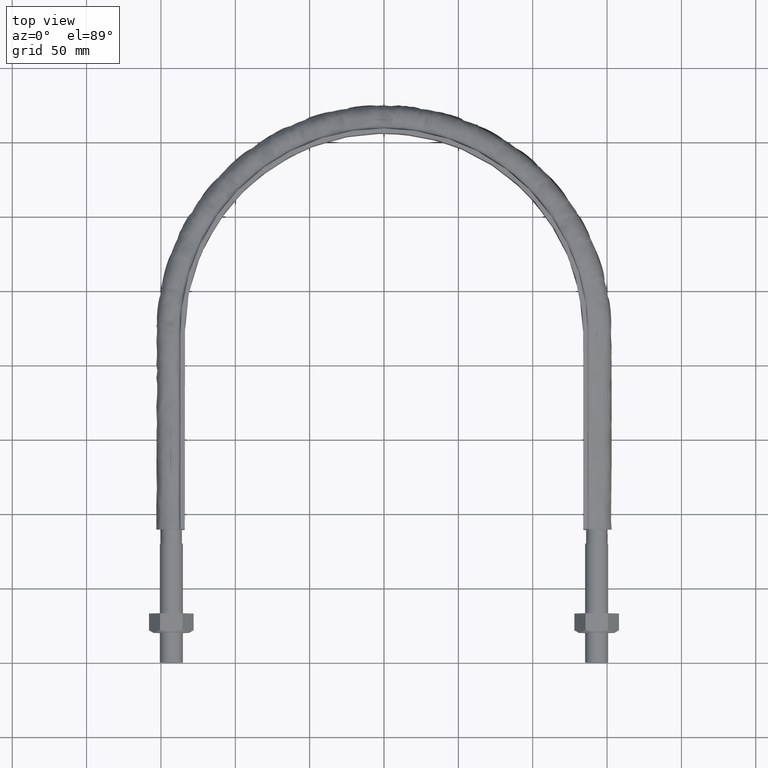
[diagram: clean part render]
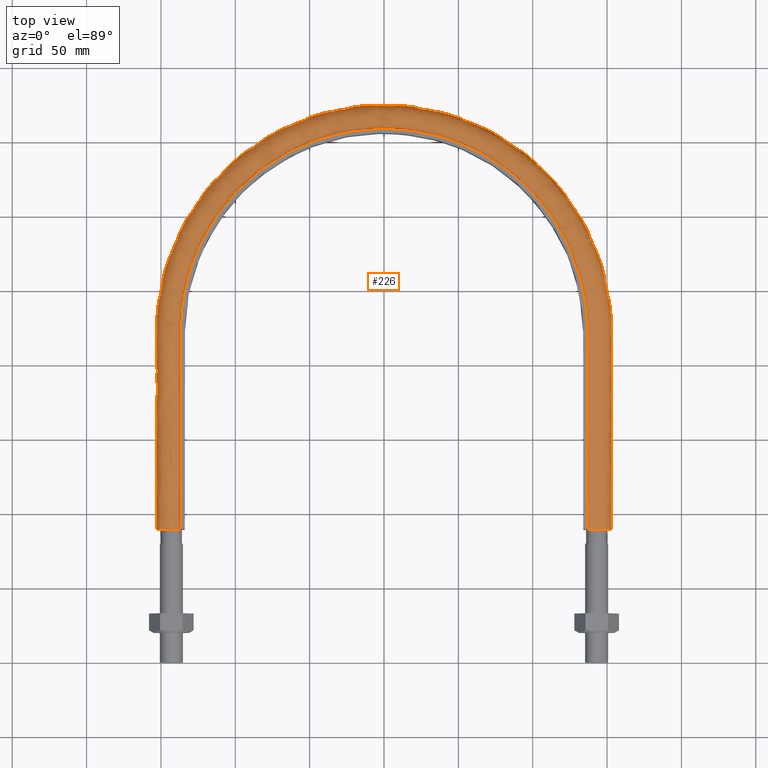
[diagram: same view with one face highlighted and labeled with its STEP entity id]
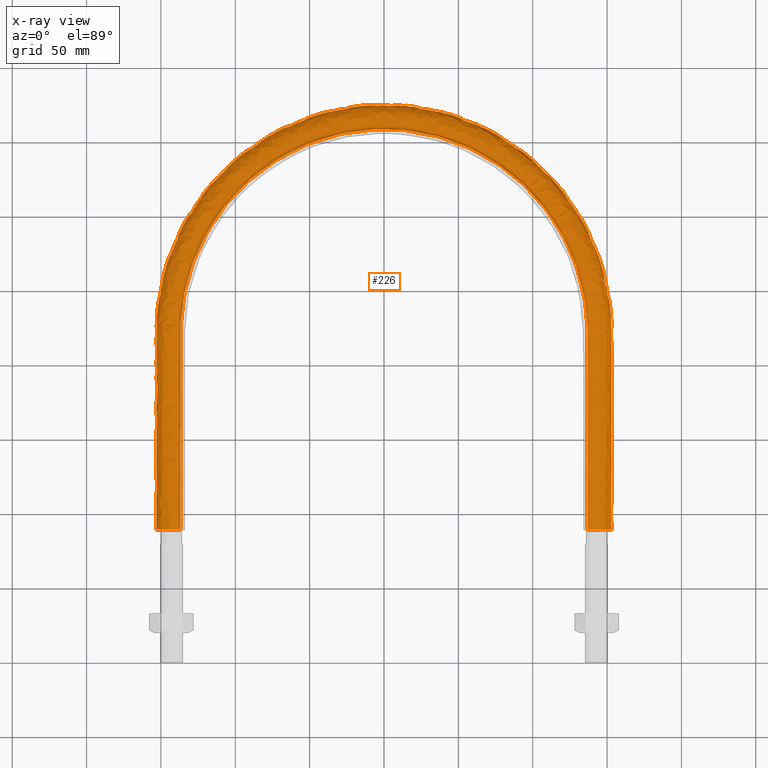
[diagram: x-ray of the same camera — body ghosted, the highlighted face saturated]
A machine part, top view. The second image highlights one B-rep face of the part: STEP entity #226.
The next image is the same camera in x-ray: the body ghosted, the highlighted face saturated — about 0% of this face is hidden behind the body in this view.
In plain terms, the highlighted face is a freeform B-spline surface patch.
Its self-contained STEP definition (entity closure, byte-faithful):
#226 = ADVANCED_FACE( '', ( #294 ), #295, .F. );
#294 = FACE_OUTER_BOUND( '', #621, .T. );
#295 = B_SPLINE_SURFACE_WITH_KNOTS( '', 3, 3, ( ( #622, #623, #624, #625, #626, #627, #628, #629, #630, #631, #632, #633, #634, #635, #636, #637, #638 ), ( #639, #640, #641, #642, #643, #644, #645, #646, #647, #648, #649, #650, #651, #652, #653, #654, #655 ), ( #656, #657, #658, #659, #660, #661, #662, #663, #664, #665, #666, #667, #668, #669, #670, #671, #672 ), ( #673, #674, #675, #676, #677, #678, #679, #680, #681, #682, #683, #684, #685, #686, #687, #688, #689 ), ( #690, #691, #692, #693, #694, #695, #696, #697, #698, #699, #700, #701, #702, #703, #704, #705, #706 ), ( #707, #708, #709, #710, #711, #712, #713, #714, #715, #716, #717, #718, #719, #720, #721, #722, #723 ), ( #724, #725, #726, #727, #728, #729, #730, #731, #732, #733, #734, #735, #736, #737, #738, #739, #740 ), ( #741, #742, #743, #744, #745, #746, #747, #748, #749, #750, #751, #752, #753, #754, #755, #756, #757 ), ( #758, #759, #760, #761, #762, #763, #764, #765, #766, #767, #768, #769, #770, #771, #772, #773, #774 ), ( #775, #776, #777, #778, #779, #780, #781, #782, #783, #784, #785, #786, #787, #788, #789, #790, #791 ), ( #792, #793, #794, #795, #796, #797, #798, #799, #800, #801, #802, #803, #804, #805, #806, #807, #808 ), ( #809, #810, #811, #812, #813, #814, #815, #816, #817, #818, #819, #820, #821, #822, #823, #824, #825 ), ( #826, #827, #828, #829, #830, #831, #832, #833, #834, #835, #836, #837, #838, #839, #840, #841, #842 ), ( #843, #844, #845, #846, #847, #848, #849, #850, #851, #852, #853, #854, #855, #856, #857, #858, #859 ), ( #860, #861, #862, #863, #864, #865, #866, #867, #868, #869, #870, #871, #872, #873, #874, #875, #876 ), ( #877, #878, #879, #880, #881, #882, #883, #884, #885, #886, #887, #888, #889, #890, #891, #892, #893 ), ( #894, #895, #896, #897, #898, #899, #900, #901, #902, #903, #904, #905, #906, #907, #908, #909, #910 ), ( #911, #912, #913, #914, #915, #916, #917, #918, #919, #920, #921, #922, #923, #924, #925, #926, #927 ), ( #928, #929, #930, #931, #932, #933, #934, #935, #936, #937, #938, #939, #940, #941, #942, #943, #944 ), ( #945, #946, #947, #948, #949, #950, #951, #952, #953, #954, #955, #956, #957, #958, #959, #960, #961 ), ( #962, #963, #964, #965, #966, #967, #968, #969, #970, #971, #972, #973, #974, #975, #976, #977, #978 ), ( #979, #980, #981, #982, #983, #984, #985, #986, #987, #988, #989, #990, #991, #992, #993, #994, #995 ), ( #996, #997, #998, #999, #1000, #1001, #1002, #1003, #1004, #1005, #1006, #1007, #1008, #1009, #1010, #1011, #1012 ), ( #1013, #1014, #1015, #1016, #1017, #1018, #1019, #1020, #1021, #1022, #1023, #1024, #1025, #1026, #1027, #1028, #1029 ), ( #1030, #1031, #1032, #1033, #1034, #1035, #1036, #1037, #1038, #1039, #1040, #1041, #1042, #1043, #1044, #1045, #1046 ), ( #1047, #1048, #1049, #1050, #1051, #1052, #1053, #1054, #1055, #1056, #1057, #1058, #1059, #1060, #1061, #1062, #1063 ), ( #1064, #1065, #1066, #1067, #1068, #1069, #1070, #1071, #1072, #1073, #1074, #1075, #1076, #1077, #1078, #1079, #1080 ), ( #1081, #1082, #1083, #1084, #1085, #1086, #1087, #1088, #1089, #1090, #1091, #1092, #1093, #1094, #1095, #1096, #1097 ), ( #1098, #1099, #1100, #1101, #1102, #1103, #1104, #1105, #1106, #1107, #1108, #1109, #1110, #1111, #1112, #1113, #1114 ), ( #1115, #1116, #1117, #1118, #1119, #1120, #1121, #1122, #1123, #1124, #1125, #1126, #1127, #1128, #1129, #1130, #1131 ), ( #1132, #1133, #1134, #1135, #1136, #1137, #1138, #1139, #1140, #1141, #1142, #1143, #1144, #1145, #1146, #1147, #1148 ), ( #1149, #1150, #1151, #1152, #1153, #1154, #1155, #1156, #1157, #1158, #1159, #1160, #1161, #1162, #1163, #1164, #1165 ) ), .UNSPECIFIED., .F., .F., .F., ( 4, 3, 1, 1, 1, 3, 3, 1, 1, 1, 1, 3, 3, 1, 1, 1, 3, 4 ), ( 4, 3, 1, 1, 1, 1, 1, 1, 1, 3, 4 ), ( 0.100000000000000, 0.150000000000000, 0.200000000000000, 0.250000000000000, 0.300000000000000, 0.350000000000000, 0.400000000000000, 0.450000000000000, 0.500000000000000, 0.550000000000000, 0.600000000000000, 0.650000000000000, 0.700000000000000, 0.750000000000000, 0.800000000000000, 0.850000000000000, 0.900000000000000, 0.950000000000000 ), ( 0.000000000000000, 1.00000000000000, 2.00000000000000, 3.00000000000000, 4.00000000000000, 5.00000000000000, 6.00000000000000, 7.00000000000000, 8.00000000000000, 9.00000000000000, 10.0000000000000 ), .UNSPECIFIED. );
#621 = EDGE_LOOP( '', ( #1716, #1717, #1718, #1719 ) );
#622 = CARTESIAN_POINT( '', ( 136.950000000000, 89.5000000000000, -20.0000000000000 ) );
#623 = CARTESIAN_POINT( '', ( 136.950000000000, 133.683333333333, -20.0000000000000 ) );
#624 = CARTESIAN_POINT( '', ( 136.950000000000, 177.866666666667, -20.0000000000000 ) );
#625 = CARTESIAN_POINT( '', ( 136.950000000000, 222.050000000000, -20.0000000000000 ) );
#626 = CARTESIAN_POINT( '', ( 136.950000000000, 239.963857435017, -20.0000000000000 ) );
#627 = CARTESIAN_POINT( '', ( 129.819269813161, 275.827750890366, -20.0000000000000 ) );
#628 = CARTESIAN_POINT( '', ( 99.3593675184605, 321.408062105588, -20.0000000000001 ) );
#629 = CARTESIAN_POINT( '', ( 53.7729022139835, 351.869642788268, -20.0000000000000 ) );
#630 = CARTESIAN_POINT( '', ( 1.22462518558505E-013, 362.565178605866, -20.0000000000000 ) );
#631 = CARTESIAN_POINT( '', ( -53.7729022139834, 351.869642788267, -20.0000000000000 ) );
#632 = CARTESIAN_POINT( '', ( -99.3593675184604, 321.408062105588, -20.0000000000000 ) );
#633 = CARTESIAN_POINT( '', ( -129.819269813161, 275.827750890366, -20.0000000000000 ) );
#634 = CARTESIAN_POINT( '', ( -136.950000000000, 239.963857435017, -20.0000000000000 ) );
#635 = CARTESIAN_POINT( '', ( -136.950000000000, 222.050000000000, -20.0000000000000 ) );
#636 = CARTESIAN_POINT( '', ( -136.950000000000, 177.866666666667, -20.0000000000000 ) );
#637 = CARTESIAN_POINT( '', ( -136.950000000000, 133.683333333333, -20.0000000000000 ) );
#638 = CARTESIAN_POINT( '', ( -136.950000000000, 89.5000000000001, -20.0000000000000 ) );
#639 = CARTESIAN_POINT( '', ( 136.950000000000, 89.5000000000000, -17.3666666666667 ) );
#640 = CARTESIAN_POINT( '', ( 136.950000000000, 133.683333333333, -17.3666666666667 ) );
#641 = CARTESIAN_POINT( '', ( 136.950000000000, 177.866666666667, -17.3666666666667 ) );
#642 = CARTESIAN_POINT( '', ( 136.950000000000, 222.050000000000, -17.3666666666667 ) );
#643 = CARTESIAN_POINT( '', ( 136.950000000000, 239.963857435017, -17.3666666666667 ) );
#644 = CARTESIAN_POINT( '', ( 129.819269813161, 275.827750890366, -17.3666666666667 ) );
#645 = CARTESIAN_POINT( '', ( 99.3593675184605, 321.408062105588, -17.3666666666667 ) );
#646 = CARTESIAN_POINT( '', ( 53.7729022139835, 351.869642788268, -17.3666666666667 ) );
#647 = CARTESIAN_POINT( '', ( 1.13788901178621E-013, 362.565178605866, -17.3666666666667 ) );
#648 = CARTESIAN_POINT( '', ( -53.7729022139834, 351.869642788267, -17.3666666666667 ) );
#649 = CARTESIAN_POINT( '', ( -99.3593675184604, 321.408062105588, -17.3666666666667 ) );
#650 = CARTESIAN_POINT( '', ( -129.819269813161, 275.827750890366, -17.3666666666667 ) );
#651 = CARTESIAN_POINT( '', ( -136.950000000000, 239.963857435017, -17.3666666666667 ) );
#652 = CARTESIAN_POINT( '', ( -136.950000000000, 222.050000000000, -17.3666666666667 ) );
#653 = CARTESIAN_POINT( '', ( -136.950000000000, 177.866666666667, -17.3666666666667 ) );
#654 = CARTESIAN_POINT( '', ( -136.950000000000, 133.683333333333, -17.3666666666667 ) );
#655 = CARTESIAN_POINT( '', ( -136.950000000000, 89.5000000000001, -17.3666666666667 ) );
#656 = CARTESIAN_POINT( '', ( 136.950000000000, 89.5000000000000, -14.7333333333333 ) );
#657 = CARTESIAN_POINT( '', ( 136.950000000000, 133.683333333333, -14.7333333333333 ) );
#658 = CARTESIAN_POINT( '', ( 136.950000000000, 177.866666666667, -14.7333333333333 ) );
#659 = CARTESIAN_POINT( '', ( 136.950000000000, 222.050000000000, -14.7333333333333 ) );
#660 = CARTESIAN_POINT( '', ( 136.950000000000, 239.963857435017, -14.7333333333333 ) );
#661 = CARTESIAN_POINT( '', ( 129.819269813161, 275.827750890366, -14.7333333333333 ) );
#662 = CARTESIAN_POINT( '', ( 99.3593675184605, 321.408062105588, -14.7333333333334 ) );
#663 = CARTESIAN_POINT( '', ( 53.7729022139835, 351.869642788268, -14.7333333333333 ) );
#664 = CARTESIAN_POINT( '', ( 1.05115283798737E-013, 362.565178605866, -14.7333333333333 ) );
#665 = CARTESIAN_POINT( '', ( -53.7729022139834, 351.869642788267, -14.7333333333333 ) );
#666 = CARTESIAN_POINT( '', ( -99.3593675184604, 321.408062105588, -14.7333333333333 ) );
#667 = CARTESIAN_POINT( '', ( -129.819269813161, 275.827750890366, -14.7333333333333 ) );
#668 = CARTESIAN_POINT( '', ( -136.950000000000, 239.963857435017, -14.7333333333333 ) );
#669 = CARTESIAN_POINT( '', ( -136.950000000000, 222.050000000000, -14.7333333333333 ) );
#670 = CARTESIAN_POINT( '', ( -136.950000000000, 177.866666666667, -14.7333333333333 ) );
#671 = CARTESIAN_POINT( '', ( -136.950000000000, 133.683333333333, -14.7333333333333 ) );
#672 = CARTESIAN_POINT( '', ( -136.950000000000, 89.5000000000001, -14.7333333333333 ) );
#673 = CARTESIAN_POINT( '', ( 136.950000000000, 89.5000000000000, -12.1000000000000 ) );
#674 = CARTESIAN_POINT( '', ( 136.950000000000, 133.683333333333, -12.1000000000000 ) );
#675 = CARTESIAN_POINT( '', ( 136.950000000000, 177.866666666667, -12.1000000000000 ) );
#676 = CARTESIAN_POINT( '', ( 136.950000000000, 222.050000000000, -12.1000000000000 ) );
#677 = CARTESIAN_POINT( '', ( 136.950000000000, 239.963857435017, -12.1000000000000 ) );
#678 = CARTESIAN_POINT( '', ( 129.819269813161, 275.827750890366, -12.1000000000000 ) );
#679 = CARTESIAN_POINT( '', ( 99.3593675184605, 321.408062105588, -12.1000000000000 ) );
#680 = CARTESIAN_POINT( '', ( 53.7729022139835, 351.869642788268, -12.1000000000000 ) );
#681 = CARTESIAN_POINT( '', ( 9.47069429428763E-014, 362.565178605866, -12.1000000000000 ) );
#682 = CARTESIAN_POINT( '', ( -53.7729022139834, 351.869642788267, -12.1000000000000 ) );
#683 = CARTESIAN_POINT( '', ( -99.3593675184604, 321.408062105588, -12.1000000000000 ) );
#684 = CARTESIAN_POINT( '', ( -129.819269813161, 275.827750890366, -12.1000000000000 ) );
#685 = CARTESIAN_POINT( '', ( -136.950000000000, 239.963857435017, -12.1000000000000 ) );
#686 = CARTESIAN_POINT( '', ( -136.950000000000, 222.050000000000, -12.1000000000000 ) );
#687 = CARTESIAN_POINT( '', ( -136.950000000000, 177.866666666667, -12.1000000000000 ) );
#688 = CARTESIAN_POINT( '', ( -136.950000000000, 133.683333333333, -12.1000000000000 ) );
#689 = CARTESIAN_POINT( '', ( -136.950000000000, 89.5000000000001, -12.1000000000000 ) );
#690 = CARTESIAN_POINT( '', ( 136.950000000000, 89.5000000000000, -11.8382358417233 ) );
#691 = CARTESIAN_POINT( '', ( 136.950000000000, 133.683333333333, -11.8382358417233 ) );
#692 = CARTESIAN_POINT( '', ( 136.950000000000, 177.866666666667, -11.8382358417233 ) );
#693 = CARTESIAN_POINT( '', ( 136.950000000000, 222.050000000000, -11.8382358417233 ) );
#694 = CARTESIAN_POINT( '', ( 136.950000000000, 239.963857435017, -11.8382358417233 ) );
#695 = CARTESIAN_POINT( '', ( 129.819269813161, 275.827750890366, -11.8382358417233 ) );
#696 = CARTESIAN_POINT( '', ( 99.3593675184605, 321.408062105588, -11.8382358417233 ) );
#697 = CARTESIAN_POINT( '', ( 53.7729022139835, 351.869642788268, -11.8382358417233 ) );
#698 = CARTESIAN_POINT( '', ( 9.29722194668995E-014, 362.565178605866, -11.8382358417233 ) );
#699 = CARTESIAN_POINT( '', ( -53.7729022139834, 351.869642788267, -11.8382358417233 ) );
#700 = CARTESIAN_POINT( '', ( -99.3593675184604, 321.408062105588, -11.8382358417233 ) );
#701 = CARTESIAN_POINT( '', ( -129.819269813161, 275.827750890366, -11.8382358417233 ) );
#702 = CARTESIAN_POINT( '', ( -136.950000000000, 239.963857435017, -11.8382358417233 ) );
#703 = CARTESIAN_POINT( '', ( -136.950000000000, 222.050000000000, -11.8382358417233 ) );
#704 = CARTESIAN_POINT( '', ( -136.950000000000, 177.866666666667, -11.8382358417233 ) );
#705 = CARTESIAN_POINT( '', ( -136.950000000000, 133.683333333333, -11.8382358417233 ) );
#706 = CARTESIAN_POINT( '', ( -136.950000000000, 89.5000000000001, -11.8382358417233 ) );
#707 = CARTESIAN_POINT( '', ( 137.054136256836, 89.5000000000000, -11.3147075251700 ) );
#708 = CARTESIAN_POINT( '', ( 137.054136256836, 133.683333333333, -11.3147075251700 ) );
#709 = CARTESIAN_POINT( '', ( 137.054136256836, 177.866666666667, -11.3147075251700 ) );
#710 = CARTESIAN_POINT( '', ( 137.054136256836, 222.050000000000, -11.3147075251700 ) );
#711 = CARTESIAN_POINT( '', ( 137.054136256836, 239.977666761268, -11.3147075251700 ) );
#712 = CARTESIAN_POINT( '', ( 129.917983890003, 275.868556141443, -11.3147075251700 ) );
#713 = CARTESIAN_POINT( '', ( 99.4349200019578, 321.483637058641, -11.3147075251700 ) );
#714 = CARTESIAN_POINT( '', ( 53.8137909234086, 351.968350445237, -11.3147075251700 ) );
#715 = CARTESIAN_POINT( '', ( 1.01658921833856E-013, 362.672029162636, -11.3147075251700 ) );
#716 = CARTESIAN_POINT( '', ( -53.8137909234086, 351.968350445236, -11.3147075251700 ) );
#717 = CARTESIAN_POINT( '', ( -99.4349200019577, 321.483637058641, -11.3147075251700 ) );
#718 = CARTESIAN_POINT( '', ( -129.917983890003, 275.868556141442, -11.3147075251700 ) );
#719 = CARTESIAN_POINT( '', ( -137.054136256836, 239.977666761268, -11.3147075251700 ) );
#720 = CARTESIAN_POINT( '', ( -137.054136256836, 222.050000000000, -11.3147075251700 ) );
#721 = CARTESIAN_POINT( '', ( -137.054136256836, 177.866666666667, -11.3147075251700 ) );
#722 = CARTESIAN_POINT( '', ( -137.054136256836, 133.683333333333, -11.3147075251700 ) );
#723 = CARTESIAN_POINT( '', ( -137.054136256836, 89.5000000000001, -11.3147075251700 ) );
#724 = CARTESIAN_POINT( '', ( 137.498968710939, 89.5000000000000, -10.6489687109389 ) );
#725 = CARTESIAN_POINT( '', ( 137.498968710939, 133.683333333333, -10.6489687109389 ) );
#726 = CARTESIAN_POINT( '', ( 137.498968710939, 177.866666666667, -10.6489687109389 ) );
#727 = CARTESIAN_POINT( '', ( 137.498968710939, 222.050000000000, -10.6489687109389 ) );
#728 = CARTESIAN_POINT( '', ( 137.498968710939, 240.036655212290, -10.6489687109389 ) );
#729 = CARTESIAN_POINT( '', ( 130.339654750761, 276.042861426923, -10.6489687109389 ) );
#730 = CARTESIAN_POINT( '', ( 99.7576529066044, 321.806465945108, -10.6489687109389 ) );
#731 = CARTESIAN_POINT( '', ( 53.9884527127922, 352.389993882618, -10.6489687109389 ) );
#732 = CARTESIAN_POINT( '', ( 1.01714816169685E-013, 363.128456125100, -10.6489687109389 ) );
#733 = CARTESIAN_POINT( '', ( -53.9884527127922, 352.389993882617, -10.6489687109389 ) );
#734 = CARTESIAN_POINT( '', ( -99.7576529066043, 321.806465945108, -10.6489687109389 ) );
#735 = CARTESIAN_POINT( '', ( -130.339654750761, 276.042861426923, -10.6489687109389 ) );
#736 = CARTESIAN_POINT( '', ( -137.498968710939, 240.036655212290, -10.6489687109389 ) );
#737 = CARTESIAN_POINT( '', ( -137.498968710939, 222.050000000000, -10.6489687109389 ) );
#738 = CARTESIAN_POINT( '', ( -137.498968710939, 177.866666666667, -10.6489687109389 ) );
#739 = CARTESIAN_POINT( '', ( -137.498968710939, 133.683333333333, -10.6489687109389 ) );
#740 = CARTESIAN_POINT( '', ( -137.498968710939, 89.5000000000001, -10.6489687109389 ) );
#741 = CARTESIAN_POINT( '', ( 138.164707525170, 89.5000000000000, -10.2041362568359 ) );
#742 = CARTESIAN_POINT( '', ( 138.164707525170, 133.683333333333, -10.2041362568359 ) );
#743 = CARTESIAN_POINT( '', ( 138.164707525170, 177.866666666667, -10.2041362568359 ) );
#744 = CARTESIAN_POINT( '', ( 138.164707525170, 222.050000000000, -10.2041362568359 ) );
#745 = CARTESIAN_POINT( '', ( 138.164707525170, 240.124937668020, -10.2041362568359 ) );
#746 = CARTESIAN_POINT( '', ( 130.970729790920, 276.303727721636, -10.2041362568359 ) );
#747 = CARTESIAN_POINT( '', ( 100.240656831500, 322.289613516949, -10.2041362568359 ) );
#748 = CARTESIAN_POINT( '', ( 54.2498525533012, 353.021027880792, -10.2041362568359 ) );
#749 = CARTESIAN_POINT( '', ( 9.65942975268569E-014, 363.811547347359, -10.2041362568359 ) );
#750 = CARTESIAN_POINT( '', ( -54.2498525533011, 353.021027880792, -10.2041362568359 ) );
#751 = CARTESIAN_POINT( '', ( -100.240656831500, 322.289613516949, -10.2041362568359 ) );
#752 = CARTESIAN_POINT( '', ( -130.970729790920, 276.303727721636, -10.2041362568359 ) );
#753 = CARTESIAN_POINT( '', ( -138.164707525170, 240.124937668020, -10.2041362568359 ) );
#754 = CARTESIAN_POINT( '', ( -138.164707525170, 222.050000000000, -10.2041362568359 ) );
#755 = CARTESIAN_POINT( '', ( -138.164707525170, 177.866666666667, -10.2041362568359 ) );
#756 = CARTESIAN_POINT( '', ( -138.164707525170, 133.683333333333, -10.2041362568359 ) );
#757 = CARTESIAN_POINT( '', ( -138.164707525170, 89.5000000000001, -10.2041362568359 ) );
#758 = CARTESIAN_POINT( '', ( 138.688235841723, 89.5000000000000, -10.1000000000000 ) );
#759 = CARTESIAN_POINT( '', ( 138.688235841723, 133.683333333333, -10.1000000000000 ) );
#760 = CARTESIAN_POINT( '', ( 138.688235841723, 177.866666666667, -10.1000000000000 ) );
#761 = CARTESIAN_POINT( '', ( 138.688235841723, 222.050000000000, -10.1000000000000 ) );
#762 = CARTESIAN_POINT( '', ( 138.688235841723, 240.194361839244, -10.1000000000000 ) );
#763 = CARTESIAN_POINT( '', ( 131.466998967857, 276.508869571859, -10.1000000000000 ) );
#764 = CARTESIAN_POINT( '', ( 100.620484815515, 322.669554463046, -10.1000000000000 ) );
#765 = CARTESIAN_POINT( '', ( 54.4554139769760, 353.517264782848, -10.1000000000000 ) );
#766 = CARTESIAN_POINT( '', ( 9.83948036750993E-014, 364.348721371161, -10.1000000000000 ) );
#767 = CARTESIAN_POINT( '', ( -54.4554139769760, 353.517264782848, -10.1000000000000 ) );
#768 = CARTESIAN_POINT( '', ( -100.620484815514, 322.669554463046, -10.1000000000000 ) );
#769 = CARTESIAN_POINT( '', ( -131.466998967857, 276.508869571859, -10.1000000000000 ) );
#770 = CARTESIAN_POINT( '', ( -138.688235841723, 240.194361839244, -10.1000000000000 ) );
#771 = CARTESIAN_POINT( '', ( -138.688235841723, 222.050000000000, -10.1000000000000 ) );
#772 = CARTESIAN_POINT( '', ( -138.688235841723, 177.866666666667, -10.1000000000000 ) );
#773 = CARTESIAN_POINT( '', ( -138.688235841723, 133.683333333333, -10.1000000000000 ) );
#774 = CARTESIAN_POINT( '', ( -138.688235841723, 89.5000000000001, -10.1000000000000 ) );
#775 = CARTESIAN_POINT( '', ( 138.950000000000, 89.5000000000000, -10.1000000000000 ) );
#776 = CARTESIAN_POINT( '', ( 138.950000000000, 133.683333333333, -10.1000000000000 ) );
#777 = CARTESIAN_POINT( '', ( 138.950000000000, 177.866666666667, -10.1000000000000 ) );
#778 = CARTESIAN_POINT( '', ( 138.950000000000, 222.050000000000, -10.1000000000000 ) );
#779 = CARTESIAN_POINT( '', ( 138.950000000000, 240.229073924856, -10.1000000000000 ) );
#780 = CARTESIAN_POINT( '', ( 131.715133556325, 276.611440496970, -10.1000000000000 ) );
#781 = CARTESIAN_POINT( '', ( 100.810398807522, 322.859524936095, -10.1000000000000 ) );
#782 = CARTESIAN_POINT( '', ( 54.5581946888135, 353.765383233876, -10.1000000000000 ) );
#783 = CARTESIAN_POINT( '', ( 9.32235245833017E-014, 364.617308383062, -10.1000000000000 ) );
#784 = CARTESIAN_POINT( '', ( -54.5581946888134, 353.765383233876, -10.1000000000000 ) );
#785 = CARTESIAN_POINT( '', ( -100.810398807522, 322.859524936095, -10.1000000000000 ) );
#786 = CARTESIAN_POINT( '', ( -131.715133556325, 276.611440496970, -10.1000000000000 ) );
#787 = CARTESIAN_POINT( '', ( -138.950000000000, 240.229073924856, -10.1000000000000 ) );
#788 = CARTESIAN_POINT( '', ( -138.950000000000, 222.050000000000, -10.1000000000000 ) );
#789 = CARTESIAN_POINT( '', ( -138.950000000000, 177.866666666667, -10.1000000000000 ) );
#790 = CARTESIAN_POINT( '', ( -138.950000000000, 133.683333333333, -10.1000000000000 ) );
#791 = CARTESIAN_POINT( '', ( -138.950000000000, 89.5000000000001, -10.1000000000000 ) );
#792 = CARTESIAN_POINT( '', ( 140.300000000000, 89.5000000000000, -10.1000000000000 ) );
#793 = CARTESIAN_POINT( '', ( 140.300000000000, 133.683333333333, -10.1000000000000 ) );
#794 = CARTESIAN_POINT( '', ( 140.300000000000, 177.866666666667, -10.1000000000000 ) );
#795 = CARTESIAN_POINT( '', ( 140.300000000000, 222.050000000000, -10.1000000000000 ) );
#796 = CARTESIAN_POINT( '', ( 140.300000000000, 240.408095055498, -10.1000000000000 ) );
#797 = CARTESIAN_POINT( '', ( 132.994841582961, 277.140430981428, -10.1000000000000 ) );
#798 = CARTESIAN_POINT( '', ( 101.789844927638, 323.839262346687, -10.1000000000000 ) );
#799 = CARTESIAN_POINT( '', ( 55.0882671093237, 355.045008034661, -10.1000000000000 ) );
#800 = CARTESIAN_POINT( '', ( 1.21148731152502E-013, 366.002495982669, -10.1000000000000 ) );
#801 = CARTESIAN_POINT( '', ( -55.0882671093237, 355.045008034661, -10.1000000000000 ) );
#802 = CARTESIAN_POINT( '', ( -101.789844927638, 323.839262346687, -10.1000000000000 ) );
#803 = CARTESIAN_POINT( '', ( -132.994841582961, 277.140430981428, -10.1000000000000 ) );
#804 = CARTESIAN_POINT( '', ( -140.300000000000, 240.408095055498, -10.1000000000000 ) );
#805 = CARTESIAN_POINT( '', ( -140.300000000000, 222.050000000000, -10.1000000000000 ) );
#806 = CARTESIAN_POINT( '', ( -140.300000000000, 177.866666666667, -10.1000000000000 ) );
#807 = CARTESIAN_POINT( '', ( -140.300000000000, 133.683333333333, -10.1000000000000 ) );
#808 = CARTESIAN_POINT( '', ( -140.300000000000, 89.5000000000001, -10.1000000000000 ) );
#809 = CARTESIAN_POINT( '', ( 141.650000000000, 89.5000000000000, -10.1000000000000 ) );
#810 = CARTESIAN_POINT( '', ( 141.650000000000, 133.683333333333, -10.1000000000000 ) );
#811 = CARTESIAN_POINT( '', ( 141.650000000000, 177.866666666667, -10.1000000000000 ) );
#812 = CARTESIAN_POINT( '', ( 141.650000000000, 222.050000000000, -10.1000000000000 ) );
#813 = CARTESIAN_POINT( '', ( 141.650000000000, 240.587116186140, -10.1000000000000 ) );
#814 = CARTESIAN_POINT( '', ( 134.274549609597, 277.669421465886, -10.1000000000000 ) );
#815 = CARTESIAN_POINT( '', ( 102.769291047754, 324.818999757278, -10.1000000000000 ) );
#816 = CARTESIAN_POINT( '', ( 55.6183395298340, 356.324632835447, -10.1000000000000 ) );
#817 = CARTESIAN_POINT( '', ( 1.17848915154120E-013, 367.387683582277, -10.1000000000000 ) );
#818 = CARTESIAN_POINT( '', ( -55.6183395298339, 356.324632835447, -10.1000000000000 ) );
#819 = CARTESIAN_POINT( '', ( -102.769291047754, 324.818999757278, -10.1000000000000 ) );
#820 = CARTESIAN_POINT( '', ( -134.274549609597, 277.669421465886, -10.1000000000000 ) );
#821 = CARTESIAN_POINT( '', ( -141.650000000000, 240.587116186140, -10.1000000000000 ) );
#822 = CARTESIAN_POINT( '', ( -141.650000000000, 222.050000000000, -10.1000000000000 ) );
#823 = CARTESIAN_POINT( '', ( -141.650000000000, 177.866666666667, -10.1000000000000 ) );
#824 = CARTESIAN_POINT( '', ( -141.650000000000, 133.683333333333, -10.1000000000000 ) );
#825 = CARTESIAN_POINT( '', ( -141.650000000000, 89.5000000000001, -10.1000000000000 ) );
#826 = CARTESIAN_POINT( '', ( 143.000000000000, 89.5000000000000, -10.1000000000000 ) );
#827 = CARTESIAN_POINT( '', ( 143.000000000000, 133.683333333333, -10.1000000000000 ) );
#828 = CARTESIAN_POINT( '', ( 143.000000000000, 177.866666666667, -10.1000000000000 ) );
#829 = CARTESIAN_POINT( '', ( 143.000000000000, 222.050000000000, -10.1000000000000 ) );
#830 = CARTESIAN_POINT( '', ( 143.000000000000, 240.766137316781, -10.1000000000000 ) );
#831 = CARTESIAN_POINT( '', ( 135.554257636233, 278.198411950344, -10.1000000000000 ) );
#832 = CARTESIAN_POINT( '', ( 103.748737167870, 325.798737167870, -10.1000000000000 ) );
#833 = CARTESIAN_POINT( '', ( 56.1484119503442, 357.604257636233, -10.1000000000000 ) );
#834 = CARTESIAN_POINT( '', ( 1.14549099155738E-013, 368.772871181884, -10.1000000000000 ) );
#835 = CARTESIAN_POINT( '', ( -56.1484119503442, 357.604257636232, -10.1000000000000 ) );
#836 = CARTESIAN_POINT( '', ( -103.748737167870, 325.798737167870, -10.1000000000000 ) );
#837 = CARTESIAN_POINT( '', ( -135.554257636232, 278.198411950344, -10.1000000000000 ) );
#838 = CARTESIAN_POINT( '', ( -143.000000000000, 240.766137316781, -10.1000000000000 ) );
#839 = CARTESIAN_POINT( '', ( -143.000000000000, 222.050000000000, -10.1000000000000 ) );
#840 = CARTESIAN_POINT( '', ( -143.000000000000, 177.866666666667, -10.1000000000000 ) );
#841 = CARTESIAN_POINT( '', ( -143.000000000000, 133.683333333333, -10.1000000000000 ) );
#842 = CARTESIAN_POINT( '', ( -143.000000000000, 89.5000000000001, -10.1000000000000 ) );
#843 = CARTESIAN_POINT( '', ( 145.113419413283, 89.5000000000000, -10.1000000000000 ) );
#844 = CARTESIAN_POINT( '', ( 145.113419413283, 133.683333333333, -10.1000000000000 ) );
#845 = CARTESIAN_POINT( '', ( 145.113419413283, 177.866666666667, -10.1000000000000 ) );
#846 = CARTESIAN_POINT( '', ( 145.113419413283, 222.050000000000, -10.1000000000000 ) );
#847 = CARTESIAN_POINT( '', ( 145.113419413283, 241.046394155956, -10.1000000000000 ) );
#848 = CARTESIAN_POINT( '', ( 137.557635256104, 279.026544364637, -10.1000000000000 ) );
#849 = CARTESIAN_POINT( '', ( 105.282056015662, 327.332512029696, -10.1000000000000 ) );
#850 = CARTESIAN_POINT( '', ( 56.9782381310496, 359.607504966380, -10.1000000000000 ) );
#851 = CARTESIAN_POINT( '', ( 9.22632505238703E-014, 370.941376636735, -10.1000000000000 ) );
#852 = CARTESIAN_POINT( '', ( -56.9782381310496, 359.607504966380, -10.1000000000000 ) );
#853 = CARTESIAN_POINT( '', ( -105.282056015662, 327.332512029696, -10.1000000000000 ) );
#854 = CARTESIAN_POINT( '', ( -137.557635256104, 279.026544364637, -10.1000000000000 ) );
#855 = CARTESIAN_POINT( '', ( -145.113419413283, 241.046394155956, -10.1000000000000 ) );
#856 = CARTESIAN_POINT( '', ( -145.113419413283, 222.050000000000, -10.1000000000000 ) );
#857 = CARTESIAN_POINT( '', ( -145.113419413283, 177.866666666667, -10.1000000000000 ) );
#858 = CARTESIAN_POINT( '', ( -145.113419413283, 133.683333333333, -10.1000000000000 ) );
#859 = CARTESIAN_POINT( '', ( -145.113419413283, 89.5000000000001, -10.1000000000000 ) );
#860 = CARTESIAN_POINT( '', ( 149.340258239849, 89.5000000000000, -8.72661681244670 ) );
#861 = CARTESIAN_POINT( '', ( 149.340258239849, 133.683333333333, -8.72661681244670 ) );
#862 = CARTESIAN_POINT( '', ( 149.340258239849, 177.866666666667, -8.72661681244670 ) );
#863 = CARTESIAN_POINT( '', ( 149.340258239849, 222.050000000000, -8.72661681244670 ) );
#864 = CARTESIAN_POINT( '', ( 149.340258239849, 241.606907834306, -8.72661681244670 ) );
#865 = CARTESIAN_POINT( '', ( 141.564390495846, 280.682809193223, -8.72661681244670 ) );
#866 = CARTESIAN_POINT( '', ( 108.348693711245, 330.400061753347, -8.72661681244671 ) );
#867 = CARTESIAN_POINT( '', ( 58.6378904924604, 363.613999626674, -8.72661681244669 ) );
#868 = CARTESIAN_POINT( '', ( 9.10596401595553E-014, 375.278387546437, -8.72661681244670 ) );
#869 = CARTESIAN_POINT( '', ( -58.6378904924603, 363.613999626674, -8.72661681244671 ) );
#870 = CARTESIAN_POINT( '', ( -108.348693711245, 330.400061753347, -8.72661681244670 ) );
#871 = CARTESIAN_POINT( '', ( -141.564390495846, 280.682809193223, -8.72661681244670 ) );
#872 = CARTESIAN_POINT( '', ( -149.340258239849, 241.606907834306, -8.72661681244670 ) );
#873 = CARTESIAN_POINT( '', ( -149.340258239849, 222.050000000000, -8.72661681244670 ) );
#874 = CARTESIAN_POINT( '', ( -149.340258239849, 177.866666666667, -8.72661681244670 ) );
#875 = CARTESIAN_POINT( '', ( -149.340258239849, 133.683333333333, -8.72661681244670 ) );
#876 = CARTESIAN_POINT( '', ( -149.340258239849, 89.5000000000001, -8.72661681244670 ) );
#877 = CARTESIAN_POINT( '', ( 153.258753329527, 89.5000000000000, -3.33327101555837 ) );
#878 = CARTESIAN_POINT( '', ( 153.258753329527, 133.683333333333, -3.33327101555837 ) );
#879 = CARTESIAN_POINT( '', ( 153.258753329527, 177.866666666667, -3.33327101555837 ) );
#880 = CARTESIAN_POINT( '', ( 153.258753329527, 222.050000000000, -3.33327101555837 ) );
#881 = CARTESIAN_POINT( '', ( 153.258753329528, 242.126532590875, -3.33327101555837 ) );
#882 = CARTESIAN_POINT( '', ( 145.278856879990, 282.218251130879, -3.33327101555837 ) );
#883 = CARTESIAN_POINT( '', ( 111.191623201823, 333.243836740442, -3.33327101555838 ) );
#884 = CARTESIAN_POINT( '', ( 60.1764728457517, 367.328224440384, -3.33327101555837 ) );
#885 = CARTESIAN_POINT( '', ( 8.80825621399182E-014, 379.299017774099, -3.33327101555837 ) );
#886 = CARTESIAN_POINT( '', ( -60.1764728457517, 367.328224440384, -3.33327101555838 ) );
#887 = CARTESIAN_POINT( '', ( -111.191623201822, 333.243836740442, -3.33327101555837 ) );
#888 = CARTESIAN_POINT( '', ( -145.278856879990, 282.218251130878, -3.33327101555837 ) );
#889 = CARTESIAN_POINT( '', ( -153.258753329527, 242.126532590875, -3.33327101555837 ) );
#890 = CARTESIAN_POINT( '', ( -153.258753329527, 222.050000000000, -3.33327101555837 ) );
#891 = CARTESIAN_POINT( '', ( -153.258753329527, 177.866666666667, -3.33327101555837 ) );
#892 = CARTESIAN_POINT( '', ( -153.258753329527, 133.683333333333, -3.33327101555837 ) );
#893 = CARTESIAN_POINT( '', ( -153.258753329527, 89.5000000000001, -3.33327101555837 ) );
#894 = CARTESIAN_POINT( '', ( 153.258753329527, 89.5000000000000, 3.33327101555837 ) );
#895 = CARTESIAN_POINT( '', ( 153.258753329527, 133.683333333333, 3.33327101555837 ) );
#896 = CARTESIAN_POINT( '', ( 153.258753329527, 177.866666666667, 3.33327101555837 ) );
#897 = CARTESIAN_POINT( '', ( 153.258753329527, 222.050000000000, 3.33327101555837 ) );
#898 = CARTESIAN_POINT( '', ( 153.258753329528, 242.126532590875, 3.33327101555837 ) );
#899 = CARTESIAN_POINT( '', ( 145.278856879990, 282.218251130879, 3.33327101555837 ) );
#900 = CARTESIAN_POINT( '', ( 111.191623201823, 333.243836740442, 3.33327101555838 ) );
#901 = CARTESIAN_POINT( '', ( 60.1764728457517, 367.328224440384, 3.33327101555837 ) );
#902 = CARTESIAN_POINT( '', ( 8.80825621399182E-014, 379.299017774099, 3.33327101555837 ) );
#903 = CARTESIAN_POINT( '', ( -60.1764728457517, 367.328224440384, 3.33327101555838 ) );
#904 = CARTESIAN_POINT( '', ( -111.191623201822, 333.243836740442, 3.33327101555837 ) );
#905 = CARTESIAN_POINT( '', ( -145.278856879990, 282.218251130878, 3.33327101555837 ) );
#906 = CARTESIAN_POINT( '', ( -153.258753329527, 242.126532590875, 3.33327101555837 ) );
#907 = CARTESIAN_POINT( '', ( -153.258753329527, 222.050000000000, 3.33327101555837 ) );
#908 = CARTESIAN_POINT( '', ( -153.258753329527, 177.866666666667, 3.33327101555837 ) );
#909 = CARTESIAN_POINT( '', ( -153.258753329527, 133.683333333333, 3.33327101555837 ) );
#910 = CARTESIAN_POINT( '', ( -153.258753329527, 89.5000000000001, 3.33327101555837 ) );
#911 = CARTESIAN_POINT( '', ( 149.340258239849, 89.5000000000000, 8.72661681244669 ) );
#912 = CARTESIAN_POINT( '', ( 149.340258239849, 133.683333333333, 8.72661681244669 ) );
#913 = CARTESIAN_POINT( '', ( 149.340258239849, 177.866666666667, 8.72661681244669 ) );
#914 = CARTESIAN_POINT( '', ( 149.340258239849, 222.050000000000, 8.72661681244669 ) );
#915 = CARTESIAN_POINT( '', ( 149.340258239849, 241.606907834306, 8.72661681244669 ) );
#916 = CARTESIAN_POINT( '', ( 141.564390495846, 280.682809193223, 8.72661681244670 ) );
#917 = CARTESIAN_POINT( '', ( 108.348693711245, 330.400061753347, 8.72661681244671 ) );
#918 = CARTESIAN_POINT( '', ( 58.6378904924604, 363.613999626674, 8.72661681244669 ) );
#919 = CARTESIAN_POINT( '', ( 9.10596401595553E-014, 375.278387546437, 8.72661681244669 ) );
#920 = CARTESIAN_POINT( '', ( -58.6378904924603, 363.613999626674, 8.72661681244670 ) );
#921 = CARTESIAN_POINT( '', ( -108.348693711245, 330.400061753347, 8.72661681244669 ) );
#922 = CARTESIAN_POINT( '', ( -141.564390495846, 280.682809193223, 8.72661681244669 ) );
#923 = CARTESIAN_POINT( '', ( -149.340258239849, 241.606907834306, 8.72661681244669 ) );
#924 = CARTESIAN_POINT( '', ( -149.340258239849, 222.050000000000, 8.72661681244669 ) );
#925 = CARTESIAN_POINT( '', ( -149.340258239849, 177.866666666667, 8.72661681244669 ) );
#926 = CARTESIAN_POINT( '', ( -149.340258239849, 133.683333333333, 8.72661681244669 ) );
#927 = CARTESIAN_POINT( '', ( -149.340258239849, 89.5000000000001, 8.72661681244669 ) );
#928 = CARTESIAN_POINT( '', ( 145.113419413283, 89.5000000000000, 10.1000000000000 ) );
#929 = CARTESIAN_POINT( '', ( 145.113419413283, 133.683333333333, 10.1000000000000 ) );
#930 = CARTESIAN_POINT( '', ( 145.113419413283, 177.866666666667, 10.1000000000000 ) );
#931 = CARTESIAN_POINT( '', ( 145.113419413283, 222.050000000000, 10.1000000000000 ) );
#932 = CARTESIAN_POINT( '', ( 145.113419413283, 241.046394155956, 10.1000000000000 ) );
#933 = CARTESIAN_POINT( '', ( 137.557635256104, 279.026544364637, 10.1000000000000 ) );
#934 = CARTESIAN_POINT( '', ( 105.282056015662, 327.332512029696, 10.1000000000000 ) );
#935 = CARTESIAN_POINT( '', ( 56.9782381310496, 359.607504966380, 10.1000000000000 ) );
#936 = CARTESIAN_POINT( '', ( 9.22632505238703E-014, 370.941376636735, 10.1000000000000 ) );
#937 = CARTESIAN_POINT( '', ( -56.9782381310496, 359.607504966380, 10.1000000000000 ) );
#938 = CARTESIAN_POINT( '', ( -105.282056015662, 327.332512029696, 10.1000000000000 ) );
#939 = CARTESIAN_POINT( '', ( -137.557635256104, 279.026544364637, 10.1000000000000 ) );
#940 = CARTESIAN_POINT( '', ( -145.113419413283, 241.046394155956, 10.1000000000000 ) );
#941 = CARTESIAN_POINT( '', ( -145.113419413283, 222.050000000000, 10.1000000000000 ) );
#942 = CARTESIAN_POINT( '', ( -145.113419413283, 177.866666666667, 10.1000000000000 ) );
#943 = CARTESIAN_POINT( '', ( -145.113419413283, 133.683333333333, 10.1000000000000 ) );
#944 = CARTESIAN_POINT( '', ( -145.113419413283, 89.5000000000001, 10.1000000000000 ) );
#945 = CARTESIAN_POINT( '', ( 143.000000000000, 89.5000000000000, 10.1000000000000 ) );
#946 = CARTESIAN_POINT( '', ( 143.000000000000, 133.683333333333, 10.1000000000000 ) );
#947 = CARTESIAN_POINT( '', ( 143.000000000000, 177.866666666667, 10.1000000000000 ) );
#948 = CARTESIAN_POINT( '', ( 143.000000000000, 222.050000000000, 10.1000000000000 ) );
#949 = CARTESIAN_POINT( '', ( 143.000000000000, 240.766137316781, 10.1000000000000 ) );
#950 = CARTESIAN_POINT( '', ( 135.554257636233, 278.198411950344, 10.1000000000000 ) );
#951 = CARTESIAN_POINT( '', ( 103.748737167870, 325.798737167870, 10.1000000000000 ) );
#952 = CARTESIAN_POINT( '', ( 56.1484119503442, 357.604257636233, 10.1000000000000 ) );
#953 = CARTESIAN_POINT( '', ( 9.19976939680394E-014, 368.772871181884, 10.1000000000000 ) );
#954 = CARTESIAN_POINT( '', ( -56.1484119503442, 357.604257636232, 10.1000000000000 ) );
#955 = CARTESIAN_POINT( '', ( -103.748737167870, 325.798737167870, 10.1000000000000 ) );
#956 = CARTESIAN_POINT( '', ( -135.554257636232, 278.198411950344, 10.1000000000000 ) );
#957 = CARTESIAN_POINT( '', ( -143.000000000000, 240.766137316781, 10.1000000000000 ) );
#958 = CARTESIAN_POINT( '', ( -143.000000000000, 222.050000000000, 10.1000000000000 ) );
#959 = CARTESIAN_POINT( '', ( -143.000000000000, 177.866666666667, 10.1000000000000 ) );
#960 = CARTESIAN_POINT( '', ( -143.000000000000, 133.683333333333, 10.1000000000000 ) );
#961 = CARTESIAN_POINT( '', ( -143.000000000000, 89.5000000000001, 10.1000000000000 ) );
#962 = CARTESIAN_POINT( '', ( 141.650000000000, 89.5000000000000, 10.1000000000000 ) );
#963 = CARTESIAN_POINT( '', ( 141.650000000000, 133.683333333333, 10.1000000000000 ) );
#964 = CARTESIAN_POINT( '', ( 141.650000000000, 177.866666666667, 10.1000000000000 ) );
#965 = CARTESIAN_POINT( '', ( 141.650000000000, 222.050000000000, 10.1000000000000 ) );
#966 = CARTESIAN_POINT( '', ( 141.650000000000, 240.587116186140, 10.1000000000000 ) );
#967 = CARTESIAN_POINT( '', ( 134.274549609597, 277.669421465886, 10.1000000000000 ) );
#968 = CARTESIAN_POINT( '', ( 102.769291047754, 324.818999757278, 10.1000000000000 ) );
#969 = CARTESIAN_POINT( '', ( 55.6183395298340, 356.324632835447, 10.1000000000000 ) );
#970 = CARTESIAN_POINT( '', ( 1.05705850822282E-013, 367.387683582277, 10.1000000000000 ) );
#971 = CARTESIAN_POINT( '', ( -55.6183395298339, 356.324632835447, 10.1000000000000 ) );
#972 = CARTESIAN_POINT( '', ( -102.769291047754, 324.818999757278, 10.1000000000000 ) );
#973 = CARTESIAN_POINT( '', ( -134.274549609597, 277.669421465886, 10.1000000000000 ) );
#974 = CARTESIAN_POINT( '', ( -141.650000000000, 240.587116186140, 10.1000000000000 ) );
#975 = CARTESIAN_POINT( '', ( -141.650000000000, 222.050000000000, 10.1000000000000 ) );
#976 = CARTESIAN_POINT( '', ( -141.650000000000, 177.866666666667, 10.1000000000000 ) );
#977 = CARTESIAN_POINT( '', ( -141.650000000000, 133.683333333333, 10.1000000000000 ) );
#978 = CARTESIAN_POINT( '', ( -141.650000000000, 89.5000000000001, 10.1000000000000 ) );
#979 = CARTESIAN_POINT( '', ( 140.300000000000, 89.5000000000000, 10.1000000000000 ) );
#980 = CARTESIAN_POINT( '', ( 140.300000000000, 133.683333333333, 10.1000000000000 ) );
#981 = CARTESIAN_POINT( '', ( 140.300000000000, 177.866666666667, 10.1000000000000 ) );
#982 = CARTESIAN_POINT( '', ( 140.300000000000, 222.050000000000, 10.1000000000000 ) );
#983 = CARTESIAN_POINT( '', ( 140.300000000000, 240.408095055498, 10.1000000000000 ) );
#984 = CARTESIAN_POINT( '', ( 132.994841582961, 277.140430981428, 10.1000000000000 ) );
#985 = CARTESIAN_POINT( '', ( 101.789844927638, 323.839262346687, 10.1000000000000 ) );
#986 = CARTESIAN_POINT( '', ( 55.0882671093237, 355.045008034661, 10.1000000000000 ) );
#987 = CARTESIAN_POINT( '', ( 1.02066772916757E-013, 366.002495982669, 10.1000000000000 ) );
#988 = CARTESIAN_POINT( '', ( -55.0882671093237, 355.045008034661, 10.1000000000000 ) );
#989 = CARTESIAN_POINT( '', ( -101.789844927638, 323.839262346687, 10.1000000000000 ) );
#990 = CARTESIAN_POINT( '', ( -132.994841582961, 277.140430981428, 10.1000000000000 ) );
#991 = CARTESIAN_POINT( '', ( -140.300000000000, 240.408095055498, 10.1000000000000 ) );
#992 = CARTESIAN_POINT( '', ( -140.300000000000, 222.050000000000, 10.1000000000000 ) );
#993 = CARTESIAN_POINT( '', ( -140.300000000000, 177.866666666667, 10.1000000000000 ) );
#994 = CARTESIAN_POINT( '', ( -140.300000000000, 133.683333333333, 10.1000000000000 ) );
#995 = CARTESIAN_POINT( '', ( -140.300000000000, 89.5000000000001, 10.1000000000000 ) );
#996 = CARTESIAN_POINT( '', ( 138.950000000000, 89.5000000000000, 10.1000000000000 ) );
#997 = CARTESIAN_POINT( '', ( 138.950000000000, 133.683333333333, 10.1000000000000 ) );
#998 = CARTESIAN_POINT( '', ( 138.950000000000, 177.866666666667, 10.1000000000000 ) );
#999 = CARTESIAN_POINT( '', ( 138.950000000000, 222.050000000000, 10.1000000000000 ) );
#1000 = CARTESIAN_POINT( '', ( 138.950000000000, 240.229073924856, 10.1000000000000 ) );
#1001 = CARTESIAN_POINT( '', ( 131.715133556325, 276.611440496970, 10.1000000000000 ) );
#1002 = CARTESIAN_POINT( '', ( 100.810398807522, 322.859524936095, 10.1000000000000 ) );
#1003 = CARTESIAN_POINT( '', ( 54.5581946888135, 353.765383233876, 10.1000000000000 ) );
#1004 = CARTESIAN_POINT( '', ( 1.01897141963186E-013, 364.617308383062, 10.1000000000000 ) );
#1005 = CARTESIAN_POINT( '', ( -54.5581946888134, 353.765383233876, 10.1000000000000 ) );
#1006 = CARTESIAN_POINT( '', ( -100.810398807522, 322.859524936095, 10.1000000000000 ) );
#1007 = CARTESIAN_POINT( '', ( -131.715133556325, 276.611440496970, 10.1000000000000 ) );
#1008 = CARTESIAN_POINT( '', ( -138.950000000000, 240.229073924856, 10.1000000000000 ) );
#1009 = CARTESIAN_POINT( '', ( -138.950000000000, 222.050000000000, 10.1000000000000 ) );
#1010 = CARTESIAN_POINT( '', ( -138.950000000000, 177.866666666667, 10.1000000000000 ) );
#1011 = CARTESIAN_POINT( '', ( -138.950000000000, 133.683333333333, 10.1000000000000 ) );
#1012 = CARTESIAN_POINT( '', ( -138.950000000000, 89.5000000000001, 10.1000000000000 ) );
#1013 = CARTESIAN_POINT( '', ( 138.688235841723, 89.5000000000000, 10.1000000000000 ) );
#1014 = CARTESIAN_POINT( '', ( 138.688235841723, 133.683333333333, 10.1000000000000 ) );
#1015 = CARTESIAN_POINT( '', ( 138.688235841723, 177.866666666667, 10.1000000000000 ) );
#1016 = CARTESIAN_POINT( '', ( 138.688235841723, 222.050000000000, 10.1000000000000 ) );
#1017 = CARTESIAN_POINT( '', ( 138.688235841723, 240.194361839244, 10.1000000000000 ) );
#1018 = CARTESIAN_POINT( '', ( 131.466998967857, 276.508869571859, 10.1000000000000 ) );
#1019 = CARTESIAN_POINT( '', ( 100.620484815515, 322.669554463046, 10.1000000000000 ) );
#1020 = CARTESIAN_POINT( '', ( 54.4554139769760, 353.517264782848, 10.1000000000000 ) );
#1021 = CARTESIAN_POINT( '', ( 9.83948036750993E-014, 364.348721371161, 10.1000000000000 ) );
#1022 = CARTESIAN_POINT( '', ( -54.4554139769760, 353.517264782848, 10.1000000000000 ) );
#1023 = CARTESIAN_POINT( '', ( -100.620484815514, 322.669554463046, 10.1000000000000 ) );
#1024 = CARTESIAN_POINT( '', ( -131.466998967857, 276.508869571859, 10.1000000000000 ) );
#1025 = CARTESIAN_POINT( '', ( -138.688235841723, 240.194361839244, 10.1000000000000 ) );
#1026 = CARTESIAN_POINT( '', ( -138.688235841723, 222.050000000000, 10.1000000000000 ) );
#1027 = CARTESIAN_POINT( '', ( -138.688235841723, 177.866666666667, 10.1000000000000 ) );
#1028 = CARTESIAN_POINT( '', ( -138.688235841723, 133.683333333333, 10.1000000000000 ) );
#1029 = CARTESIAN_POINT( '', ( -138.688235841723, 89.5000000000001, 10.1000000000000 ) );
#1030 = CARTESIAN_POINT( '', ( 138.164707525170, 89.5000000000000, 10.2041362568359 ) );
#1031 = CARTESIAN_POINT( '', ( 138.164707525170, 133.683333333333, 10.2041362568359 ) );
#1032 = CARTESIAN_POINT( '', ( 138.164707525170, 177.866666666667, 10.2041362568359 ) );
#1033 = CARTESIAN_POINT( '', ( 138.164707525170, 222.050000000000, 10.2041362568359 ) );
#1034 = CARTESIAN_POINT( '', ( 138.164707525170, 240.124937668020, 10.2041362568359 ) );
#1035 = CARTESIAN_POINT( '', ( 130.970729790920, 276.303727721636, 10.2041362568359 ) );
#1036 = CARTESIAN_POINT( '', ( 100.240656831500, 322.289613516949, 10.2041362568359 ) );
#1037 = CARTESIAN_POINT( '', ( 54.2498525533012, 353.021027880792, 10.2041362568359 ) );
#1038 = CARTESIAN_POINT( '', ( 9.65942975268569E-014, 363.811547347359, 10.2041362568359 ) );
#1039 = CARTESIAN_POINT( '', ( -54.2498525533011, 353.021027880792, 10.2041362568359 ) );
#1040 = CARTESIAN_POINT( '', ( -100.240656831500, 322.289613516949, 10.2041362568359 ) );
#1041 = CARTESIAN_POINT( '', ( -130.970729790920, 276.303727721636, 10.2041362568359 ) );
#1042 = CARTESIAN_POINT( '', ( -138.164707525170, 240.124937668020, 10.2041362568359 ) );
#1043 = CARTESIAN_POINT( '', ( -138.164707525170, 222.050000000000, 10.2041362568359 ) );
#1044 = CARTESIAN_POINT( '', ( -138.164707525170, 177.866666666667, 10.2041362568359 ) );
#1045 = CARTESIAN_POINT( '', ( -138.164707525170, 133.683333333333, 10.2041362568359 ) );
#1046 = CARTESIAN_POINT( '', ( -138.164707525170, 89.5000000000001, 10.2041362568359 ) );
#1047 = CARTESIAN_POINT( '', ( 137.498968710939, 89.5000000000000, 10.6489687109389 ) );
#1048 = CARTESIAN_POINT( '', ( 137.498968710939, 133.683333333333, 10.6489687109389 ) );
#1049 = CARTESIAN_POINT( '', ( 137.498968710939, 177.866666666667, 10.6489687109389 ) );
#1050 = CARTESIAN_POINT( '', ( 137.498968710939, 222.050000000000, 10.6489687109389 ) );
#1051 = CARTESIAN_POINT( '', ( 137.498968710939, 240.036655212290, 10.6489687109389 ) );
#1052 = CARTESIAN_POINT( '', ( 130.339654750761, 276.042861426923, 10.6489687109389 ) );
#1053 = CARTESIAN_POINT( '', ( 99.7576529066044, 321.806465945108, 10.6489687109389 ) );
#1054 = CARTESIAN_POINT( '', ( 53.9884527127922, 352.389993882618, 10.6489687109389 ) );
#1055 = CARTESIAN_POINT( '', ( 1.01714816169685E-013, 363.128456125100, 10.6489687109389 ) );
#1056 = CARTESIAN_POINT( '', ( -53.9884527127922, 352.389993882617, 10.6489687109389 ) );
#1057 = CARTESIAN_POINT( '', ( -99.7576529066043, 321.806465945108, 10.6489687109389 ) );
#1058 = CARTESIAN_POINT( '', ( -130.339654750761, 276.042861426923, 10.6489687109389 ) );
#1059 = CARTESIAN_POINT( '', ( -137.498968710939, 240.036655212290, 10.6489687109389 ) );
#1060 = CARTESIAN_POINT( '', ( -137.498968710939, 222.050000000000, 10.6489687109389 ) );
#1061 = CARTESIAN_POINT( '', ( -137.498968710939, 177.866666666667, 10.6489687109389 ) );
#1062 = CARTESIAN_POINT( '', ( -137.498968710939, 133.683333333333, 10.6489687109389 ) );
#1063 = CARTESIAN_POINT( '', ( -137.498968710939, 89.5000000000001, 10.6489687109389 ) );
#1064 = CARTESIAN_POINT( '', ( 137.054136256836, 89.5000000000000, 11.3147075251700 ) );
#1065 = CARTESIAN_POINT( '', ( 137.054136256836, 133.683333333333, 11.3147075251700 ) );
#1066 = CARTESIAN_POINT( '', ( 137.054136256836, 177.866666666667, 11.3147075251700 ) );
#1067 = CARTESIAN_POINT( '', ( 137.054136256836, 222.050000000000, 11.3147075251700 ) );
#1068 = CARTESIAN_POINT( '', ( 137.054136256836, 239.977666761268, 11.3147075251700 ) );
#1069 = CARTESIAN_POINT( '', ( 129.917983890003, 275.868556141443, 11.3147075251700 ) );
#1070 = CARTESIAN_POINT( '', ( 99.4349200019578, 321.483637058641, 11.3147075251700 ) );
#1071 = CARTESIAN_POINT( '', ( 53.8137909234086, 351.968350445237, 11.3147075251700 ) );
#1072 = CARTESIAN_POINT( '', ( 1.01658921833856E-013, 362.672029162636, 11.3147075251700 ) );
#1073 = CARTESIAN_POINT( '', ( -53.8137909234086, 351.968350445236, 11.3147075251700 ) );
#1074 = CARTESIAN_POINT( '', ( -99.4349200019577, 321.483637058641, 11.3147075251700 ) );
#1075 = CARTESIAN_POINT( '', ( -129.917983890003, 275.868556141442, 11.3147075251700 ) );
#1076 = CARTESIAN_POINT( '', ( -137.054136256836, 239.977666761268, 11.3147075251700 ) );
#1077 = CARTESIAN_POINT( '', ( -137.054136256836, 222.050000000000, 11.3147075251700 ) );
#1078 = CARTESIAN_POINT( '', ( -137.054136256836, 177.866666666667, 11.3147075251700 ) );
#1079 = CARTESIAN_POINT( '', ( -137.054136256836, 133.683333333333, 11.3147075251700 ) );
#1080 = CARTESIAN_POINT( '', ( -137.054136256836, 89.5000000000001, 11.3147075251700 ) );
#1081 = CARTESIAN_POINT( '', ( 136.950000000000, 89.5000000000000, 11.8382358417233 ) );
#1082 = CARTESIAN_POINT( '', ( 136.950000000000, 133.683333333333, 11.8382358417233 ) );
#1083 = CARTESIAN_POINT( '', ( 136.950000000000, 177.866666666667, 11.8382358417233 ) );
#1084 = CARTESIAN_POINT( '', ( 136.950000000000, 222.050000000000, 11.8382358417233 ) );
#1085 = CARTESIAN_POINT( '', ( 136.950000000000, 239.963857435017, 11.8382358417233 ) );
#1086 = CARTESIAN_POINT( '', ( 129.819269813161, 275.827750890366, 11.8382358417233 ) );
#1087 = CARTESIAN_POINT( '', ( 99.3593675184605, 321.408062105588, 11.8382358417233 ) );
#1088 = CARTESIAN_POINT( '', ( 53.7729022139835, 351.869642788268, 11.8382358417233 ) );
#1089 = CARTESIAN_POINT( '', ( 9.29722194668995E-014, 362.565178605866, 11.8382358417233 ) );
#1090 = CARTESIAN_POINT( '', ( -53.7729022139834, 351.869642788267, 11.8382358417233 ) );
#1091 = CARTESIAN_POINT( '', ( -99.3593675184604, 321.408062105588, 11.8382358417233 ) );
#1092 = CARTESIAN_POINT( '', ( -129.819269813161, 275.827750890366, 11.8382358417233 ) );
#1093 = CARTESIAN_POINT( '', ( -136.950000000000, 239.963857435017, 11.8382358417233 ) );
#1094 = CARTESIAN_POINT( '', ( -136.950000000000, 222.050000000000, 11.8382358417233 ) );
#1095 = CARTESIAN_POINT( '', ( -136.950000000000, 177.866666666667, 11.8382358417233 ) );
#1096 = CARTESIAN_POINT( '', ( -136.950000000000, 133.683333333333, 11.8382358417233 ) );
#1097 = CARTESIAN_POINT( '', ( -136.950000000000, 89.5000000000001, 11.8382358417233 ) );
#1098 = CARTESIAN_POINT( '', ( 136.950000000000, 89.5000000000000, 12.1000000000000 ) );
#1099 = CARTESIAN_POINT( '', ( 136.950000000000, 133.683333333333, 12.1000000000000 ) );
#1100 = CARTESIAN_POINT( '', ( 136.950000000000, 177.866666666667, 12.1000000000000 ) );
#1101 = CARTESIAN_POINT( '', ( 136.950000000000, 222.050000000000, 12.1000000000000 ) );
#1102 = CARTESIAN_POINT( '', ( 136.950000000000, 239.963857435017, 12.1000000000000 ) );
#1103 = CARTESIAN_POINT( '', ( 129.819269813161, 275.827750890366, 12.1000000000000 ) );
#1104 = CARTESIAN_POINT( '', ( 99.3593675184605, 321.408062105588, 12.1000000000000 ) );
#1105 = CARTESIAN_POINT( '', ( 53.7729022139835, 351.869642788268, 12.1000000000000 ) );
#1106 = CARTESIAN_POINT( '', ( 9.29722194668995E-014, 362.565178605866, 12.1000000000000 ) );
#1107 = CARTESIAN_POINT( '', ( -53.7729022139834, 351.869642788267, 12.1000000000000 ) );
#1108 = CARTESIAN_POINT( '', ( -99.3593675184604, 321.408062105588, 12.1000000000000 ) );
#1109 = CARTESIAN_POINT( '', ( -129.819269813161, 275.827750890366, 12.1000000000000 ) );
#1110 = CARTESIAN_POINT( '', ( -136.950000000000, 239.963857435017, 12.1000000000000 ) );
#1111 = CARTESIAN_POINT( '', ( -136.950000000000, 222.050000000000, 12.1000000000000 ) );
#1112 = CARTESIAN_POINT( '', ( -136.950000000000, 177.866666666667, 12.1000000000000 ) );
#1113 = CARTESIAN_POINT( '', ( -136.950000000000, 133.683333333333, 12.1000000000000 ) );
#1114 = CARTESIAN_POINT( '', ( -136.950000000000, 89.5000000000001, 12.1000000000000 ) );
#1115 = CARTESIAN_POINT( '', ( 136.950000000000, 89.5000000000000, 14.7333333333333 ) );
#1116 = CARTESIAN_POINT( '', ( 136.950000000000, 133.683333333333, 14.7333333333333 ) );
#1117 = CARTESIAN_POINT( '', ( 136.950000000000, 177.866666666667, 14.7333333333333 ) );
#1118 = CARTESIAN_POINT( '', ( 136.950000000000, 222.050000000000, 14.7333333333333 ) );
#1119 = CARTESIAN_POINT( '', ( 136.950000000000, 239.963857435017, 14.7333333333333 ) );
#1120 = CARTESIAN_POINT( '', ( 129.819269813161, 275.827750890366, 14.7333333333333 ) );
#1121 = CARTESIAN_POINT( '', ( 99.3593675184605, 321.408062105588, 14.7333333333334 ) );
#1122 = CARTESIAN_POINT( '', ( 53.7729022139835, 351.869642788268, 14.7333333333333 ) );
#1123 = CARTESIAN_POINT( '', ( 8.42986020870155E-014, 362.565178605866, 14.7333333333333 ) );
#1124 = CARTESIAN_POINT( '', ( -53.7729022139835, 351.869642788267, 14.7333333333333 ) );
#1125 = CARTESIAN_POINT( '', ( -99.3593675184604, 321.408062105588, 14.7333333333333 ) );
#1126 = CARTESIAN_POINT( '', ( -129.819269813161, 275.827750890366, 14.7333333333333 ) );
#1127 = CARTESIAN_POINT( '', ( -136.950000000000, 239.963857435017, 14.7333333333333 ) );
#1128 = CARTESIAN_POINT( '', ( -136.950000000000, 222.050000000000, 14.7333333333333 ) );
#1129 = CARTESIAN_POINT( '', ( -136.950000000000, 177.866666666667, 14.7333333333333 ) );
#1130 = CARTESIAN_POINT( '', ( -136.950000000000, 133.683333333333, 14.7333333333333 ) );
#1131 = CARTESIAN_POINT( '', ( -136.950000000000, 89.5000000000001, 14.7333333333333 ) );
#1132 = CARTESIAN_POINT( '', ( 136.950000000000, 89.5000000000000, 17.3666666666667 ) );
#1133 = CARTESIAN_POINT( '', ( 136.950000000000, 133.683333333333, 17.3666666666667 ) );
#1134 = CARTESIAN_POINT( '', ( 136.950000000000, 177.866666666667, 17.3666666666667 ) );
#1135 = CARTESIAN_POINT( '', ( 136.950000000000, 222.050000000000, 17.3666666666667 ) );
#1136 = CARTESIAN_POINT( '', ( 136.950000000000, 239.963857435017, 17.3666666666667 ) );
#1137 = CARTESIAN_POINT( '', ( 129.819269813161, 275.827750890366, 17.3666666666667 ) );
#1138 = CARTESIAN_POINT( '', ( 99.3593675184605, 321.408062105588, 17.3666666666667 ) );
#1139 = CARTESIAN_POINT( '', ( 53.7729022139835, 351.869642788268, 17.3666666666666 ) );
#1140 = CARTESIAN_POINT( '', ( 8.77680490389691E-014, 362.565178605866, 17.3666666666667 ) );
#1141 = CARTESIAN_POINT( '', ( -53.7729022139835, 351.869642788267, 17.3666666666667 ) );
#1142 = CARTESIAN_POINT( '', ( -99.3593675184604, 321.408062105588, 17.3666666666667 ) );
#1143 = CARTESIAN_POINT( '', ( -129.819269813161, 275.827750890366, 17.3666666666667 ) );
#1144 = CARTESIAN_POINT( '', ( -136.950000000000, 239.963857435017, 17.3666666666667 ) );
#1145 = CARTESIAN_POINT( '', ( -136.950000000000, 222.050000000000, 17.3666666666667 ) );
#1146 = CARTESIAN_POINT( '', ( -136.950000000000, 177.866666666667, 17.3666666666667 ) );
#1147 = CARTESIAN_POINT( '', ( -136.950000000000, 133.683333333333, 17.3666666666667 ) );
#1148 = CARTESIAN_POINT( '', ( -136.950000000000, 89.5000000000001, 17.3666666666667 ) );
#1149 = CARTESIAN_POINT( '', ( 136.950000000000, 89.5000000000000, 20.0000000000000 ) );
#1150 = CARTESIAN_POINT( '', ( 136.950000000000, 133.683333333333, 20.0000000000000 ) );
#1151 = CARTESIAN_POINT( '', ( 136.950000000000, 177.866666666667, 20.0000000000000 ) );
#1152 = CARTESIAN_POINT( '', ( 136.950000000000, 222.050000000000, 20.0000000000000 ) );
#1153 = CARTESIAN_POINT( '', ( 136.950000000000, 239.963857435017, 20.0000000000000 ) );
#1154 = CARTESIAN_POINT( '', ( 129.819269813161, 275.827750890366, 20.0000000000000 ) );
#1155 = CARTESIAN_POINT( '', ( 99.3593675184605, 321.408062105588, 20.0000000000000 ) );
#1156 = CARTESIAN_POINT( '', ( 53.7729022139835, 351.869642788268, 20.0000000000000 ) );
#1157 = CARTESIAN_POINT( '', ( 8.77680490389691E-014, 362.565178605866, 20.0000000000000 ) );
#1158 = CARTESIAN_POINT( '', ( -53.7729022139835, 351.869642788267, 20.0000000000000 ) );
#1159 = CARTESIAN_POINT( '', ( -99.3593675184604, 321.408062105588, 20.0000000000000 ) );
#1160 = CARTESIAN_POINT( '', ( -129.819269813161, 275.827750890366, 20.0000000000000 ) );
#1161 = CARTESIAN_POINT( '', ( -136.950000000000, 239.963857435017, 20.0000000000000 ) );
#1162 = CARTESIAN_POINT( '', ( -136.950000000000, 222.050000000000, 20.0000000000000 ) );
#1163 = CARTESIAN_POINT( '', ( -136.950000000000, 177.866666666667, 20.0000000000000 ) );
#1164 = CARTESIAN_POINT( '', ( -136.950000000000, 133.683333333333, 20.0000000000000 ) );
#1165 = CARTESIAN_POINT( '', ( -136.950000000000, 89.5000000000001, 20.0000000000000 ) );
#1716 = ORIENTED_EDGE( '', *, *, #2042, .T. );
#1717 = ORIENTED_EDGE( '', *, *, #2054, .F. );
#1718 = ORIENTED_EDGE( '', *, *, #2059, .F. );
#1719 = ORIENTED_EDGE( '', *, *, #2061, .F. );
#2042 = EDGE_CURVE( '', #2146, #2147, #2148, .T. );
#2054 = EDGE_CURVE( '', #2168, #2147, #2170, .T. );
#2059 = EDGE_CURVE( '', #2176, #2168, #2177, .T. );
#2061 = EDGE_CURVE( '', #2146, #2176, #2179, .F. );
#2146 = VERTEX_POINT( '', #2320 );
#2147 = VERTEX_POINT( '', #2321 );
#2148 = B_SPLINE_CURVE_WITH_KNOTS( '', 3, ( #2322, #2323, #2324, #2325, #2326, #2327, #2328, #2329, #2330, #2331, #2332, #2333, #2334, #2335, #2336, #2337, #2338 ), .UNSPECIFIED., .F., .F., ( 4, 3, 1, 1, 1, 1, 1, 1, 1, 3, 4 ), ( 0.000000000000000, 0.100000000000000, 0.200000000000000, 0.300000000000000, 0.400000000000000, 0.500000000000000, 0.600000000000000, 0.700000000000000, 0.800000000000000, 0.900000000000000, 1.00000000000000 ), .UNSPECIFIED. );
#2168 = VERTEX_POINT( '', #2521 );
#2170 = B_SPLINE_CURVE_WITH_KNOTS( '', 3, ( #2524, #2525, #2526, #2527, #2528, #2529, #2530, #2531, #2532, #2533, #2534, #2535, #2536, #2537, #2538, #2539, #2540, #2541, #2542, #2543, #2544, #2545, #2546, #2547, #2548, #2549, #2550, #2551, #2552, #2553, #2554, #2555 ), .UNSPECIFIED., .F., .F., ( 4, 3, 1, 1, 1, 3, 3, 1, 1, 1, 1, 3, 3, 1, 1, 1, 3, 4 ), ( 0.131645569620253, 0.150000000000000, 0.200000000000000, 0.250000000000000, 0.300000000000000, 0.350000000000000, 0.400000000000000, 0.450000000000000, 0.500000000000000, 0.550000000000000, 0.600000000000000, 0.650000000000000, 0.700000000000000, 0.750000000000000, 0.800000000000000, 0.850000000000000, 0.900000000000000, 0.918354430379747 ), .UNSPECIFIED. );
#2176 = VERTEX_POINT( '', #2670 );
#2177 = B_SPLINE_CURVE_WITH_KNOTS( '', 3, ( #2671, #2672, #2673, #2674, #2675, #2676, #2677, #2678, #2679, #2680, #2681, #2682, #2683, #2684, #2685, #2686, #2687, #2688, #2689, #2690, #2691, #2692, #2693, #2694, #2695, #2696, #2697, #2698, #2699, #2700, #2701, #2702, #2703, #2704, #2705, #2706, #2707, #2708, #2709, #2710, #2711, #2712, #2713, #2714, #2715, #2716, #2717, #2718, #2719, #2720, #2721, #2722, #2723, #2724, #2725, #2726, #2727, #2728, #2729, #2730, #2731, #2732, #2733, #2734, #2735, #2736, #2737, #2738, #2739, #2740, #2741, #2742, #2743, #2744, #2745, #2746, #2747, #2748, #2749, #2750, #2751, #2752, #2753, #2754, #2755, #2756, #2757, #2758, #2759, #2760, #2761, #2762, #2763 ), .UNSPECIFIED., .F., .F., ( 4, 1, 1, 2, 2, 2, 2, 2, 2, 2, 2, 2, 2, 2, 2, 2, 2, 2, 2, 2, 2, 2, 2, 2, 2, 2, 2, 2, 2, 2, 2, 2, 2, 2, 2, 2, 2, 2, 2, 2, 2, 2, 2, 2, 2, 2, 1, 4 ), ( 0.000000000000000, 0.125000000000002, 0.187500000000003, 0.191406250000003, 0.195312500000003, 0.203125000000002, 0.218750000000003, 0.250000000000003, 0.257812500000003, 0.265625000000003, 0.281250000000002, 0.312500000000002, 0.328125000000002, 0.343750000000002, 0.375000000000001, 0.390625000000001, 0.398437500000001, 0.406250000000001, 0.437500000000001, 0.453125000000001, 0.460937500000000, 0.468750000000000, 0.500000000000000, 0.515625000000000, 0.523437500000000, 0.531250000000000, 0.562500000000000, 0.578124999999999, 0.585937499999999, 0.593749999999999, 0.624999999999999, 0.656249999999999, 0.664062499999999, 0.671874999999999, 0.687499999999998, 0.718749999999998, 0.722656249999998, 0.726562499999998, 0.734374999999998, 0.749999999999998, 0.781249999999997, 0.789062499999997, 0.796874999999997, 0.804687499999997, 0.808593749999997, 0.812499999999996, 0.874999999999998, 1.00000000000000 ), .UNSPECIFIED. );
#2179 = B_SPLINE_CURVE_WITH_KNOTS( '', 3, ( #2766, #2767, #2768, #2769, #2770, #2771, #2772, #2773, #2774, #2775, #2776, #2777, #2778, #2779, #2780, #2781, #2782, #2783, #2784, #2785, #2786, #2787, #2788, #2789, #2790, #2791, #2792, #2793, #2794, #2795, #2796, #2797 ), .UNSPECIFIED., .F., .F., ( 4, 3, 1, 1, 1, 3, 3, 1, 1, 1, 1, 3, 3, 1, 1, 1, 3, 4 ), ( 0.131645569620253, 0.150000000000000, 0.200000000000000, 0.250000000000000, 0.300000000000000, 0.350000000000000, 0.400000000000000, 0.450000000000000, 0.500000000000000, 0.550000000000000, 0.600000000000000, 0.650000000000000, 0.700000000000000, 0.750000000000000, 0.800000000000000, 0.850000000000000, 0.900000000000000, 0.918354430379747 ), .UNSPECIFIED. );
#2320 = CARTESIAN_POINT( '', ( -136.950000000000, 89.5000000000001, 15.0000000000000 ) );
#2321 = CARTESIAN_POINT( '', ( 136.950000000000, 89.5000000000001, 15.0000000000000 ) );
#2322 = CARTESIAN_POINT( '', ( -136.950000000000, 89.5000000000001, 15.0000000000000 ) );
#2323 = CARTESIAN_POINT( '', ( -136.950000000000, 133.683333333333, 15.0000000000000 ) );
#2324 = CARTESIAN_POINT( '', ( -136.950000000000, 177.866666666667, 15.0000000000000 ) );
#2325 = CARTESIAN_POINT( '', ( -136.950000000000, 222.050000000000, 15.0000000000000 ) );
#2326 = CARTESIAN_POINT( '', ( -136.950000000000, 239.963857435017, 15.0000000000000 ) );
#2327 = CARTESIAN_POINT( '', ( -129.819269813161, 275.827750890366, 15.0000000000000 ) );
#2328 = CARTESIAN_POINT( '', ( -99.3593675184604, 321.408062105588, 15.0000000000000 ) );
#2329 = CARTESIAN_POINT( '', ( -53.7729022139835, 351.869642788267, 15.0000000000000 ) );
#2330 = CARTESIAN_POINT( '', ( 8.75569432064516E-014, 362.565178605866, 15.0000000000000 ) );
#2331 = CARTESIAN_POINT( '', ( 53.7729022139835, 351.869642788268, 15.0000000000000 ) );
#2332 = CARTESIAN_POINT( '', ( 99.3593675184605, 321.408062105588, 15.0000000000000 ) );
#2333 = CARTESIAN_POINT( '', ( 129.819269813161, 275.827750890366, 15.0000000000000 ) );
#2334 = CARTESIAN_POINT( '', ( 136.950000000000, 239.963857435017, 15.0000000000000 ) );
#2335 = CARTESIAN_POINT( '', ( 136.950000000000, 222.050000000000, 15.0000000000000 ) );
#2336 = CARTESIAN_POINT( '', ( 136.950000000000, 177.866666666667, 15.0000000000000 ) );
#2337 = CARTESIAN_POINT( '', ( 136.950000000000, 133.683333333333, 15.0000000000000 ) );
#2338 = CARTESIAN_POINT( '', ( 136.950000000000, 89.5000000000000, 15.0000000000000 ) );
#2521 = CARTESIAN_POINT( '', ( 136.950000000000, 89.5000000000001, -15.0000000000000 ) );
#2524 = CARTESIAN_POINT( '', ( 136.950000000000, 89.5000000000000, -15.0000000000000 ) );
#2525 = CARTESIAN_POINT( '', ( 136.950000000000, 89.5000000000000, -14.0333333333333 ) );
#2526 = CARTESIAN_POINT( '', ( 136.950000000000, 89.5000000000000, -13.0666666666667 ) );
#2527 = CARTESIAN_POINT( '', ( 136.950000000000, 89.5000000000000, -12.1000000000000 ) );
#2528 = CARTESIAN_POINT( '', ( 136.950000000000, 89.5000000000000, -11.8382358417233 ) );
#2529 = CARTESIAN_POINT( '', ( 137.054136256836, 89.5000000000000, -11.3147075251700 ) );
#2530 = CARTESIAN_POINT( '', ( 137.498968710939, 89.5000000000000, -10.6489687109389 ) );
#2531 = CARTESIAN_POINT( '', ( 138.164707525170, 89.5000000000000, -10.2041362568359 ) );
#2532 = CARTESIAN_POINT( '', ( 138.688235841723, 89.5000000000000, -10.1000000000000 ) );
#2533 = CARTESIAN_POINT( '', ( 138.950000000000, 89.5000000000000, -10.1000000000000 ) );
#2534 = CARTESIAN_POINT( '', ( 140.300000000000, 89.5000000000000, -10.1000000000000 ) );
#2535 = CARTESIAN_POINT( '', ( 141.650000000000, 89.5000000000000, -10.1000000000000 ) );
#2536 = CARTESIAN_POINT( '', ( 143.000000000000, 89.5000000000000, -10.1000000000000 ) );
#2537 = CARTESIAN_POINT( '', ( 145.113419413283, 89.5000000000000, -10.1000000000000 ) );
#2538 = CARTESIAN_POINT( '', ( 149.340258239849, 89.5000000000000, -8.72661681244670 ) );
#2539 = CARTESIAN_POINT( '', ( 153.258753329527, 89.5000000000000, -3.33327101555837 ) );
#2540 = CARTESIAN_POINT( '', ( 153.258753329527, 89.5000000000000, 3.33327101555837 ) );
#2541 = CARTESIAN_POINT( '', ( 149.340258239849, 89.5000000000000, 8.72661681244669 ) );
#2542 = CARTESIAN_POINT( '', ( 145.113419413283, 89.5000000000000, 10.1000000000000 ) );
#2543 = CARTESIAN_POINT( '', ( 143.000000000000, 89.5000000000000, 10.1000000000000 ) );
#2544 = CARTESIAN_POINT( '', ( 141.650000000000, 89.5000000000000, 10.1000000000000 ) );
#2545 = CARTESIAN_POINT( '', ( 140.300000000000, 89.5000000000000, 10.1000000000000 ) );
#2546 = CARTESIAN_POINT( '', ( 138.950000000000, 89.5000000000000, 10.1000000000000 ) );
#2547 = CARTESIAN_POINT( '', ( 138.688235841723, 89.5000000000000, 10.1000000000000 ) );
#2548 = CARTESIAN_POINT( '', ( 138.164707525170, 89.5000000000000, 10.2041362568359 ) );
#2549 = CARTESIAN_POINT( '', ( 137.498968710939, 89.5000000000000, 10.6489687109389 ) );
#2550 = CARTESIAN_POINT( '', ( 137.054136256836, 89.5000000000000, 11.3147075251700 ) );
#2551 = CARTESIAN_POINT( '', ( 136.950000000000, 89.5000000000000, 11.8382358417233 ) );
#2552 = CARTESIAN_POINT( '', ( 136.950000000000, 89.5000000000000, 12.1000000000000 ) );
#2553 = CARTESIAN_POINT( '', ( 136.950000000000, 89.5000000000000, 13.0666666666667 ) );
#2554 = CARTESIAN_POINT( '', ( 136.950000000000, 89.5000000000000, 14.0333333333333 ) );
#2555 = CARTESIAN_POINT( '', ( 136.950000000000, 89.5000000000000, 15.0000000000000 ) );
#2670 = CARTESIAN_POINT( '', ( -136.950000000000, 89.5000000000001, -15.0000000000000 ) );
#2671 = CARTESIAN_POINT( '', ( -136.950000000000, 89.5000000000001, -15.0000000000000 ) );
#2672 = CARTESIAN_POINT( '', ( -136.950000000000, 118.108351814219, -15.0000000000000 ) );
#2673 = CARTESIAN_POINT( '', ( -136.950000000000, 161.020879535546, -15.0000000000000 ) );
#2674 = CARTESIAN_POINT( '', ( -136.950000000000, 204.827418251068, -15.0000000000000 ) );
#2675 = CARTESIAN_POINT( '', ( -136.950000000000, 220.025605152372, -15.0000000000000 ) );
#2676 = CARTESIAN_POINT( '', ( -136.950000000000, 221.813627140760, -15.0000000000000 ) );
#2677 = CARTESIAN_POINT( '', ( -136.951346114390, 222.707775042567, -15.0000000000000 ) );
#2678 = CARTESIAN_POINT( '', ( -136.920609614582, 225.386681945511, -15.0000000000000 ) );
#2679 = CARTESIAN_POINT( '', ( -136.864816667886, 227.169029468828, -15.0000000000000 ) );
#2680 = CARTESIAN_POINT( '', ( -136.593146380454, 232.505464995944, -15.0000000000000 ) );
#2681 = CARTESIAN_POINT( '', ( -136.273189661635, 236.048967525582, -15.0000000000000 ) );
#2682 = CARTESIAN_POINT( '', ( -134.901802697672, 246.637621477265, -15.0000000000000 ) );
#2683 = CARTESIAN_POINT( '', ( -133.442512350631, 253.641291170172, -15.0000000000000 ) );
#2684 = CARTESIAN_POINT( '', ( -130.901383601594, 262.322953634697, -15.0000000000000 ) );
#2685 = CARTESIAN_POINT( '', ( -130.357015832177, 264.055610275365, -15.0000000000000 ) );
#2686 = CARTESIAN_POINT( '', ( -129.193847954833, 267.513353357775, -15.0000000000000 ) );
#2687 = CARTESIAN_POINT( '', ( -128.573476846170, 269.242131151953, -15.0000000000000 ) );
#2688 = CARTESIAN_POINT( '', ( -126.618174555290, 274.362723165805, -15.0000000000000 ) );
#2689 = CARTESIAN_POINT( '', ( -125.184490197968, 277.702984774707, -15.0000000000000 ) );
#2690 = CARTESIAN_POINT( '', ( -120.505328593637, 287.510336023068, -15.0000000000000 ) );
#2691 = CARTESIAN_POINT( '', ( -116.886061102882, 293.766429658881, -15.0000000000000 ) );
#2692 = CARTESIAN_POINT( '', ( -110.711856714430, 302.729863608688, -15.0000000000000 ) );
#2693 = CARTESIAN_POINT( '', ( -108.528201325971, 305.647880339849, -15.0000000000000 ) );
#2694 = CARTESIAN_POINT( '', ( -103.904407759561, 311.334716161009, -15.0000000000000 ) );
#2695 = CARTESIAN_POINT( '', ( -101.494535344133, 314.066402872892, -15.0000000000000 ) );
#2696 = CARTESIAN_POINT( '', ( -93.9768857717446, 321.932991567950, -15.0000000000000 ) );
#2697 = CARTESIAN_POINT( '', ( -88.5810092968209, 326.739345713163, -15.0000000000000 ) );
#2698 = CARTESIAN_POINT( '', ( -79.9242816112247, 333.306932196036, -15.0000000000000 ) );
#2699 = CARTESIAN_POINT( '', ( -76.9444034133837, 335.388585548725, -15.0000000000000 ) );
#2700 = CARTESIAN_POINT( '', ( -72.3295994596727, 338.345723108325, -15.0000000000000 ) );
#2701 = CARTESIAN_POINT( '', ( -70.7649027135216, 339.304967513353, -15.0000000000000 ) );
#2702 = CARTESIAN_POINT( '', ( -67.6140063459477, 341.151291429898, -15.0000000000000 ) );
#2703 = CARTESIAN_POINT( '', ( -66.0248395654166, 342.040393152112, -15.0000000000000 ) );
#2704 = CARTESIAN_POINT( '', ( -58.0112237793678, 346.317614365294, -15.0000000000000 ) );
#2705 = CARTESIAN_POINT( '', ( -51.3838695117621, 349.201965048637, -15.0000000000000 ) );
#2706 = CARTESIAN_POINT( '', ( -41.1199306990064, 352.726783518546, -15.0000000000000 ) );
#2707 = CARTESIAN_POINT( '', ( -37.6449536795551, 353.768486983704, -15.0000000000000 ) );
#2708 = CARTESIAN_POINT( '', ( -32.3508572250080, 355.128370680882, -15.0000000000000 ) );
#2709 = CARTESIAN_POINT( '', ( -30.5711219683573, 355.548134877370, -15.0000000000000 ) );
#2710 = CARTESIAN_POINT( '', ( -26.9898806015858, 356.317593884026, -15.0000000000000 ) );
#2711 = CARTESIAN_POINT( '', ( -25.1975634552110, 356.665375332186, -15.0000000000000 ) );
#2712 = CARTESIAN_POINT( '', ( -16.2276412077899, 358.222717729931, -15.0000000000000 ) );
#2713 = CARTESIAN_POINT( '', ( -9.02523440856736, 358.892110978601, -15.0000000000000 ) );
#2714 = CARTESIAN_POINT( '', ( 1.81786937464440, 359.036051739121, -15.0000000000000 ) );
#2715 = CARTESIAN_POINT( '', ( 5.43888442947024, 358.939261125259, -15.0000000000000 ) );
#2716 = CARTESIAN_POINT( '', ( 10.8804397715058, 358.575567070277, -15.0000000000000 ) );
#2717 = CARTESIAN_POINT( '', ( 12.6959650568691, 358.417887683017, -15.0000000000000 ) );
#2718 = CARTESIAN_POINT( '', ( 16.3304010621810, 358.028795956680, -15.0000000000000 ) );
#2719 = CARTESIAN_POINT( '', ( 18.1509778757328, 357.796964222104, -15.0000000000000 ) );
#2720 = CARTESIAN_POINT( '', ( 27.1816143256275, 356.463826032725, -15.0000000000000 ) );
#2721 = CARTESIAN_POINT( '', ( 34.2390508622090, 354.839668956545, -15.0000000000000 ) );
#2722 = CARTESIAN_POINT( '', ( 44.5810778790186, 351.588595998648, -15.0000000000000 ) );
#2723 = CARTESIAN_POINT( '', ( 47.9874716560260, 350.368228980460, -15.0000000000000 ) );
#2724 = CARTESIAN_POINT( '', ( 53.0340989443394, 348.327522487613, -15.0000000000000 ) );
#2725 = CARTESIAN_POINT( '', ( 54.7057757971050, 347.612133002601, -15.0000000000000 ) );
#2726 = CARTESIAN_POINT( '', ( 58.0278931759406, 346.110472498891, -15.0000000000000 ) );
#2727 = CARTESIAN_POINT( '', ( 59.6804492387648, 345.323156348271, -15.0000000000000 ) );
#2728 = CARTESIAN_POINT( '', ( 67.8662269615211, 341.218943105620, -15.0000000000000 ) );
#2729 = CARTESIAN_POINT( '', ( 74.0672509269300, 337.457093171529, -15.0000000000000 ) );
#2730 = CARTESIAN_POINT( '', ( 85.8066697855656, 329.021264559786, -15.0000000000000 ) );
#2731 = CARTESIAN_POINT( '', ( 91.3450708111379, 324.347294323490, -15.0000000000000 ) );
#2732 = CARTESIAN_POINT( '', ( 97.8308624293475, 317.902999344751, -15.0000000000000 ) );
#2733 = CARTESIAN_POINT( '', ( 99.1063522438762, 316.583042958306, -15.0000000000000 ) );
#2734 = CARTESIAN_POINT( '', ( 101.590244963731, 313.906741637720, -15.0000000000000 ) );
#2735 = CARTESIAN_POINT( '', ( 102.801672903783, 312.547491271698, -15.0000000000000 ) );
#2736 = CARTESIAN_POINT( '', ( 106.346254323220, 308.407722078790, -15.0000000000000 ) );
#2737 = CARTESIAN_POINT( '', ( 108.589893323643, 305.565315081670, -15.0000000000000 ) );
#2738 = CARTESIAN_POINT( '', ( 114.970214089517, 296.795700236809, -15.0000000000000 ) );
#2739 = CARTESIAN_POINT( '', ( 118.759288976830, 290.628165305693, -15.0000000000000 ) );
#2740 = CARTESIAN_POINT( '', ( 122.482049801510, 283.316381079695, -15.0000000000000 ) );
#2741 = CARTESIAN_POINT( '', ( 122.888127373353, 282.498732064797, -15.0000000000000 ) );
#2742 = CARTESIAN_POINT( '', ( 123.684984798984, 280.852857558546, -15.0000000000000 ) );
#2743 = CARTESIAN_POINT( '', ( 124.076188679038, 280.023697389435, -15.0000000000000 ) );
#2744 = CARTESIAN_POINT( '', ( 125.223076035006, 277.527782870249, -15.0000000000000 ) );
#2745 = CARTESIAN_POINT( '', ( 125.951536386374, 275.853956327217, -15.0000000000000 ) );
#2746 = CARTESIAN_POINT( '', ( 128.029666807743, 270.803138776699, -15.0000000000000 ) );
#2747 = CARTESIAN_POINT( '', ( 129.272445179675, 267.396908032732, -15.0000000000000 ) );
#2748 = CARTESIAN_POINT( '', ( 132.586786070952, 257.064969568913, -15.0000000000000 ) );
#2749 = CARTESIAN_POINT( '', ( 134.247821790206, 250.026964115281, -15.0000000000000 ) );
#2750 = CARTESIAN_POINT( '', ( 135.630952375180, 241.039845429982, -15.0000000000000 ) );
#2751 = CARTESIAN_POINT( '', ( 135.872641992840, 239.232864972872, -15.0000000000000 ) );
#2752 = CARTESIAN_POINT( '', ( 136.284803757172, 235.599422844282, -15.0000000000000 ) );
#2753 = CARTESIAN_POINT( '', ( 136.455153129533, 233.772516640443, -15.0000000000000 ) );
#2754 = CARTESIAN_POINT( '', ( 136.721567786733, 230.123756924611, -15.0000000000000 ) );
#2755 = CARTESIAN_POINT( '', ( 136.818027802696, 228.298840221395, -15.0000000000000 ) );
#2756 = CARTESIAN_POINT( '', ( 136.907499245267, 225.560658472589, -15.0000000000000 ) );
#2757 = CARTESIAN_POINT( '', ( 136.928116262671, 224.647796719939, -15.0000000000000 ) );
#2758 = CARTESIAN_POINT( '', ( 136.950875956315, 222.821803321072, -15.0000000000000 ) );
#2759 = CARTESIAN_POINT( '', ( 136.950000000000, 221.908627575340, -15.0000000000000 ) );
#2760 = CARTESIAN_POINT( '', ( 136.950000000000, 206.384857445817, -15.0000000000000 ) );
#2761 = CARTESIAN_POINT( '', ( 136.950000000000, 162.553035903636, -15.0000000000000 ) );
#2762 = CARTESIAN_POINT( '', ( 136.950000000000, 118.721214361455, -15.0000000000000 ) );
#2763 = CARTESIAN_POINT( '', ( 136.950000000000, 89.5000000000000, -15.0000000000000 ) );
#2766 = CARTESIAN_POINT( '', ( -136.950000000000, 89.5000000000001, -15.0000000000000 ) );
#2767 = CARTESIAN_POINT( '', ( -136.950000000000, 89.5000000000001, -14.0333333333333 ) );
#2768 = CARTESIAN_POINT( '', ( -136.950000000000, 89.5000000000001, -13.0666666666667 ) );
#2769 = CARTESIAN_POINT( '', ( -136.950000000000, 89.5000000000001, -12.1000000000000 ) );
#2770 = CARTESIAN_POINT( '', ( -136.950000000000, 89.5000000000001, -11.8382358417233 ) );
#2771 = CARTESIAN_POINT( '', ( -137.054136256836, 89.5000000000001, -11.3147075251700 ) );
#2772 = CARTESIAN_POINT( '', ( -137.498968710939, 89.5000000000001, -10.6489687109389 ) );
#2773 = CARTESIAN_POINT( '', ( -138.164707525170, 89.5000000000001, -10.2041362568359 ) );
#2774 = CARTESIAN_POINT( '', ( -138.688235841723, 89.5000000000001, -10.1000000000000 ) );
#2775 = CARTESIAN_POINT( '', ( -138.950000000000, 89.5000000000001, -10.1000000000000 ) );
#2776 = CARTESIAN_POINT( '', ( -140.300000000000, 89.5000000000001, -10.1000000000000 ) );
#2777 = CARTESIAN_POINT( '', ( -141.650000000000, 89.5000000000001, -10.1000000000000 ) );
#2778 = CARTESIAN_POINT( '', ( -143.000000000000, 89.5000000000001, -10.1000000000000 ) );
#2779 = CARTESIAN_POINT( '', ( -145.113419413283, 89.5000000000001, -10.1000000000000 ) );
#2780 = CARTESIAN_POINT( '', ( -149.340258239849, 89.5000000000001, -8.72661681244670 ) );
#2781 = CARTESIAN_POINT( '', ( -153.258753329527, 89.5000000000001, -3.33327101555837 ) );
#2782 = CARTESIAN_POINT( '', ( -153.258753329527, 89.5000000000001, 3.33327101555837 ) );
#2783 = CARTESIAN_POINT( '', ( -149.340258239849, 89.5000000000001, 8.72661681244669 ) );
#2784 = CARTESIAN_POINT( '', ( -145.113419413283, 89.5000000000001, 10.1000000000000 ) );
#2785 = CARTESIAN_POINT( '', ( -143.000000000000, 89.5000000000001, 10.1000000000000 ) );
#2786 = CARTESIAN_POINT( '', ( -141.650000000000, 89.5000000000001, 10.1000000000000 ) );
#2787 = CARTESIAN_POINT( '', ( -140.300000000000, 89.5000000000001, 10.1000000000000 ) );
#2788 = CARTESIAN_POINT( '', ( -138.950000000000, 89.5000000000001, 10.1000000000000 ) );
#2789 = CARTESIAN_POINT( '', ( -138.688235841723, 89.5000000000001, 10.1000000000000 ) );
#2790 = CARTESIAN_POINT( '', ( -138.164707525170, 89.5000000000001, 10.2041362568359 ) );
#2791 = CARTESIAN_POINT( '', ( -137.498968710939, 89.5000000000001, 10.6489687109389 ) );
#2792 = CARTESIAN_POINT( '', ( -137.054136256836, 89.5000000000001, 11.3147075251700 ) );
#2793 = CARTESIAN_POINT( '', ( -136.950000000000, 89.5000000000001, 11.8382358417233 ) );
#2794 = CARTESIAN_POINT( '', ( -136.950000000000, 89.5000000000001, 12.1000000000000 ) );
#2795 = CARTESIAN_POINT( '', ( -136.950000000000, 89.5000000000001, 13.0666666666667 ) );
#2796 = CARTESIAN_POINT( '', ( -136.950000000000, 89.5000000000001, 14.0333333333333 ) );
#2797 = CARTESIAN_POINT( '', ( -136.950000000000, 89.5000000000001, 15.0000000000000 ) );